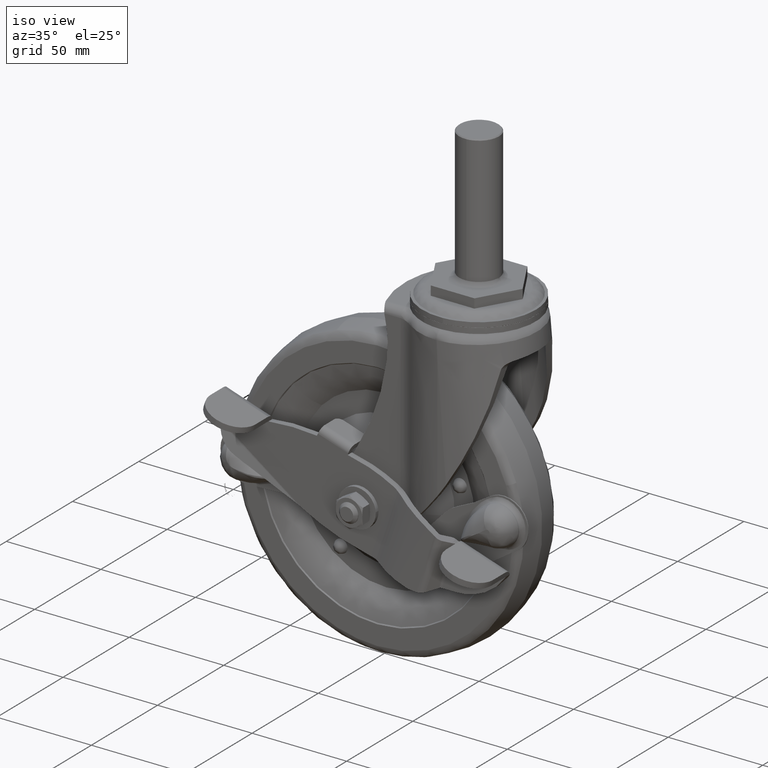
[diagram: clean part render]
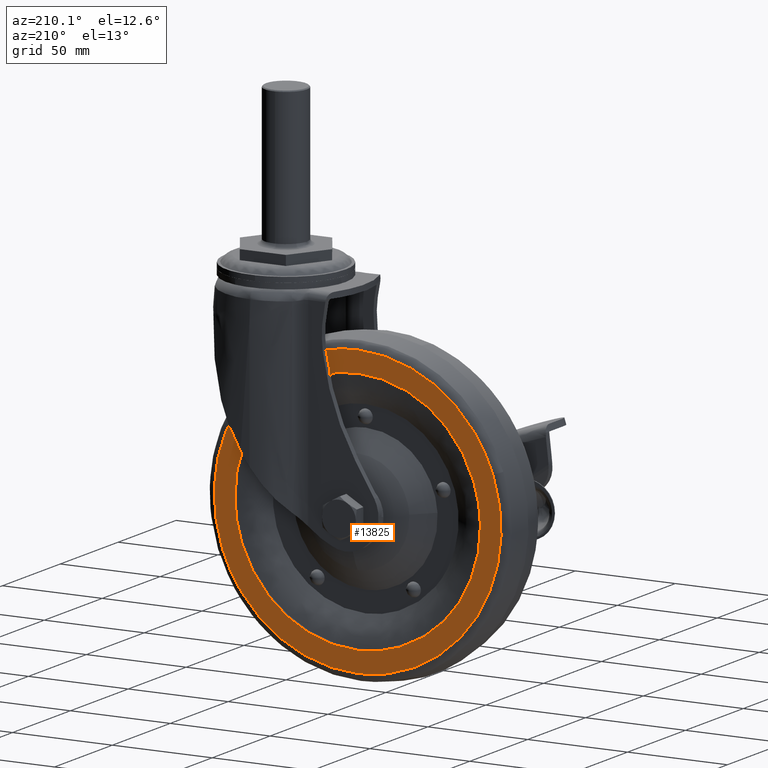
[diagram: tour spotlight — one face highlighted and labeled with its STEP entity id]
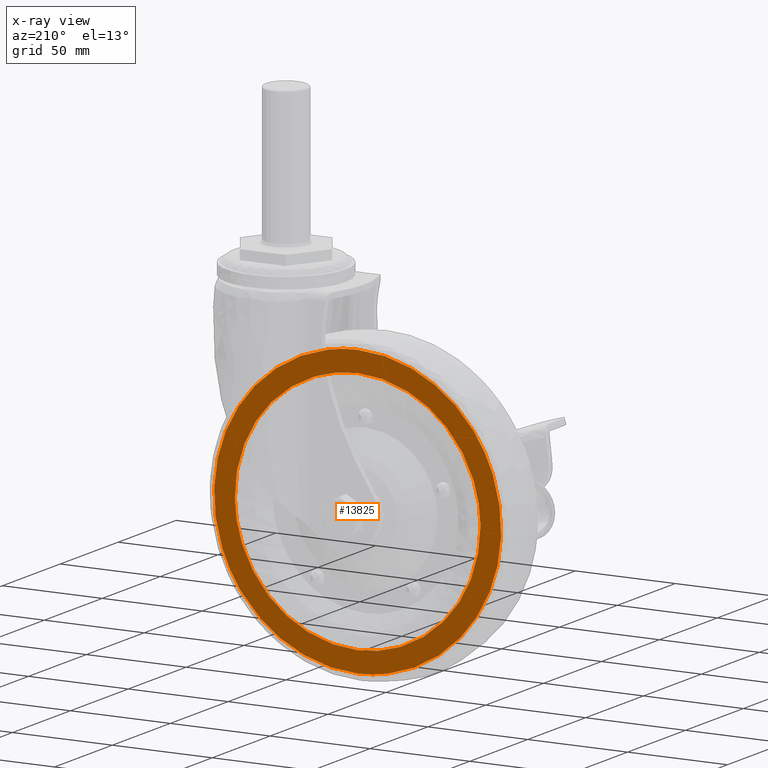
[diagram: x-ray of the same camera — body ghosted, this tour face saturated]
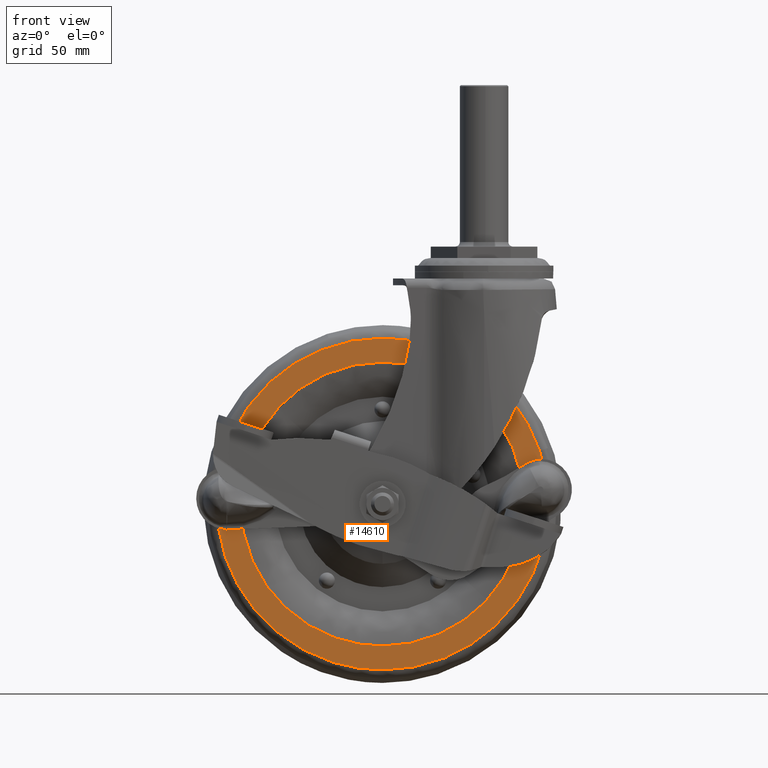
[diagram: tour spotlight — one face highlighted and labeled with its STEP entity id]
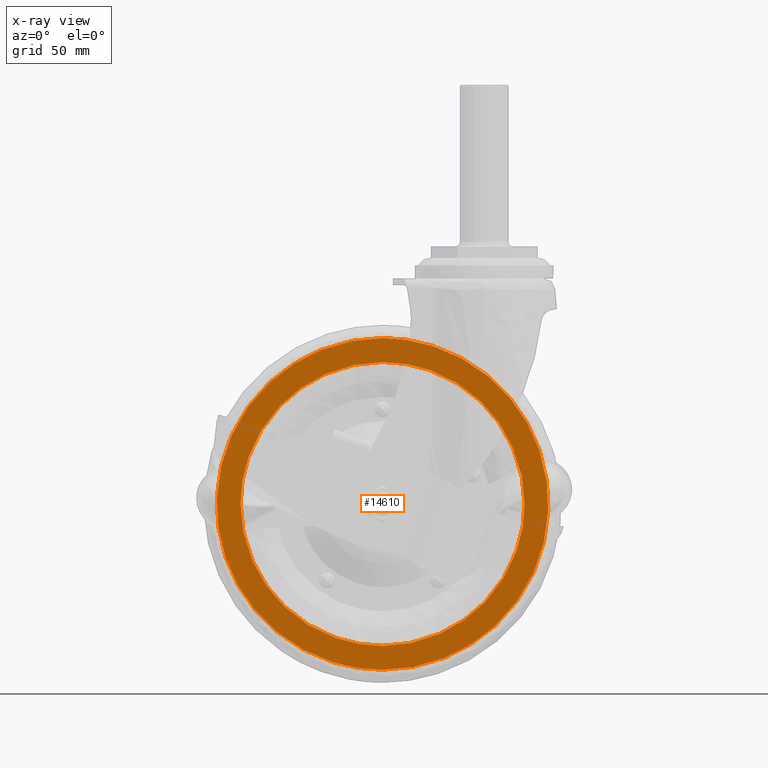
[diagram: x-ray of the same camera — body ghosted, this tour face saturated]
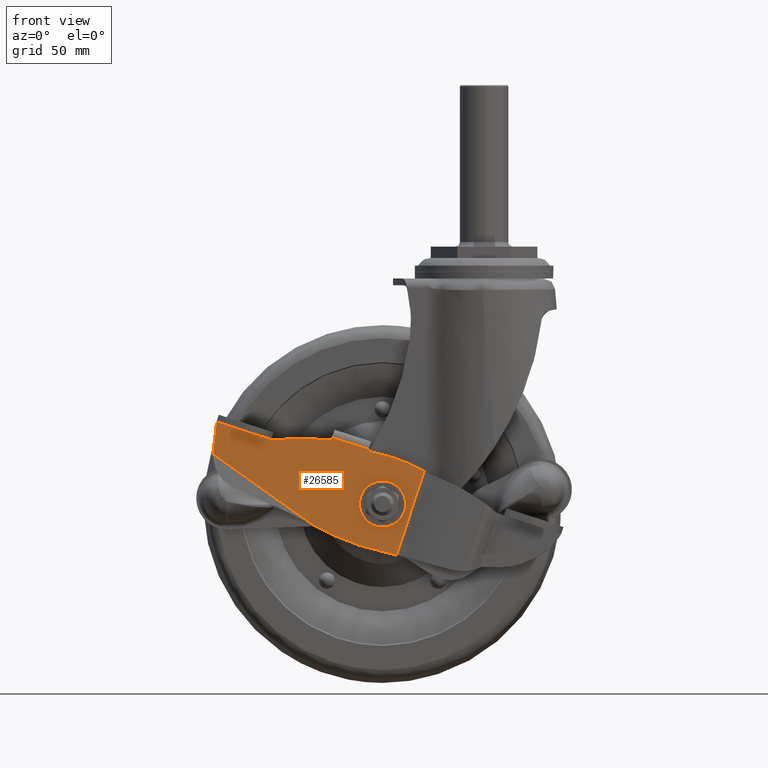
[diagram: tour spotlight — one face highlighted and labeled with its STEP entity id]
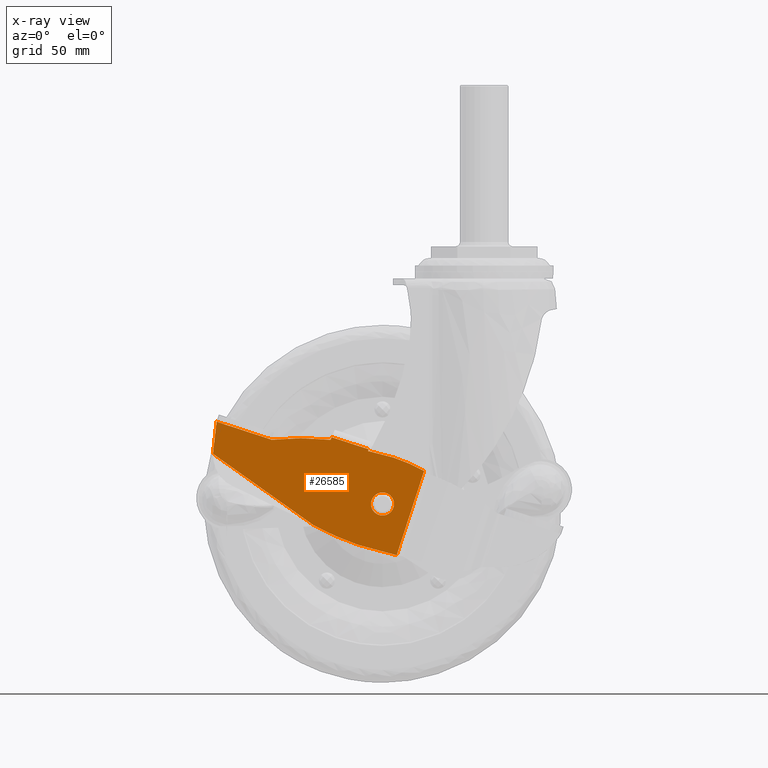
[diagram: x-ray of the same camera — body ghosted, this tour face saturated]
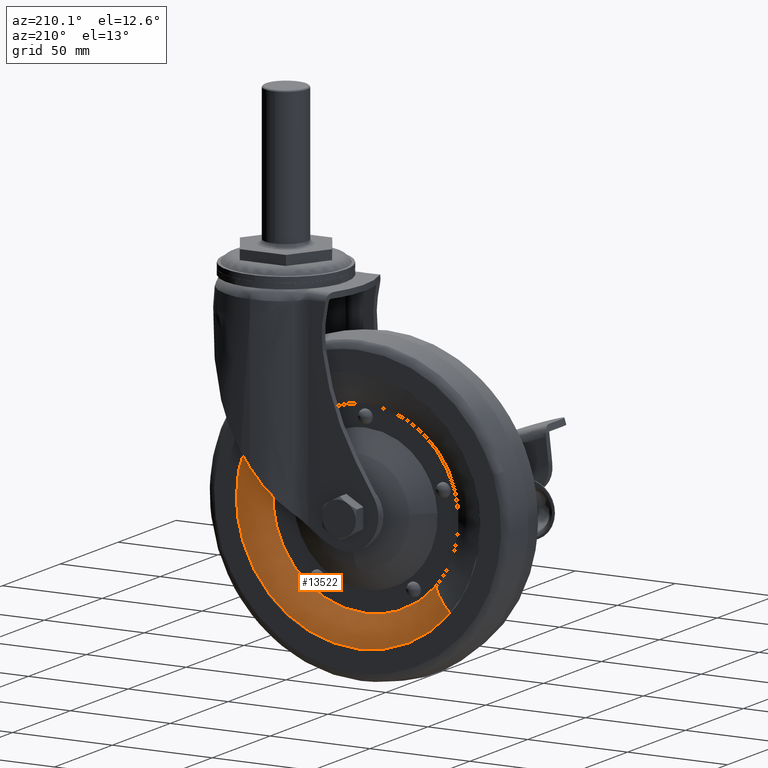
[diagram: tour spotlight — one face highlighted and labeled with its STEP entity id]
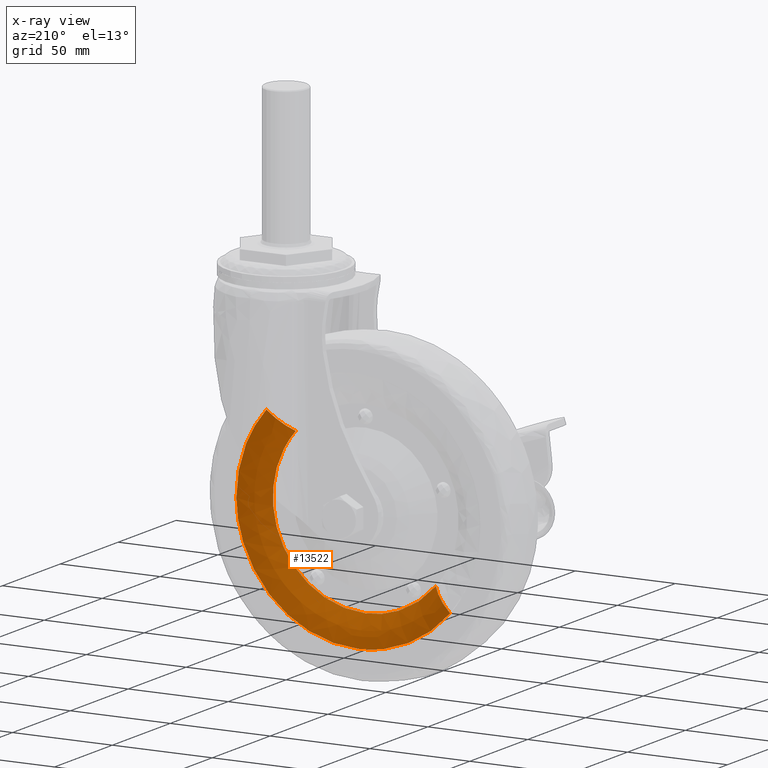
[diagram: x-ray of the same camera — body ghosted, this tour face saturated]
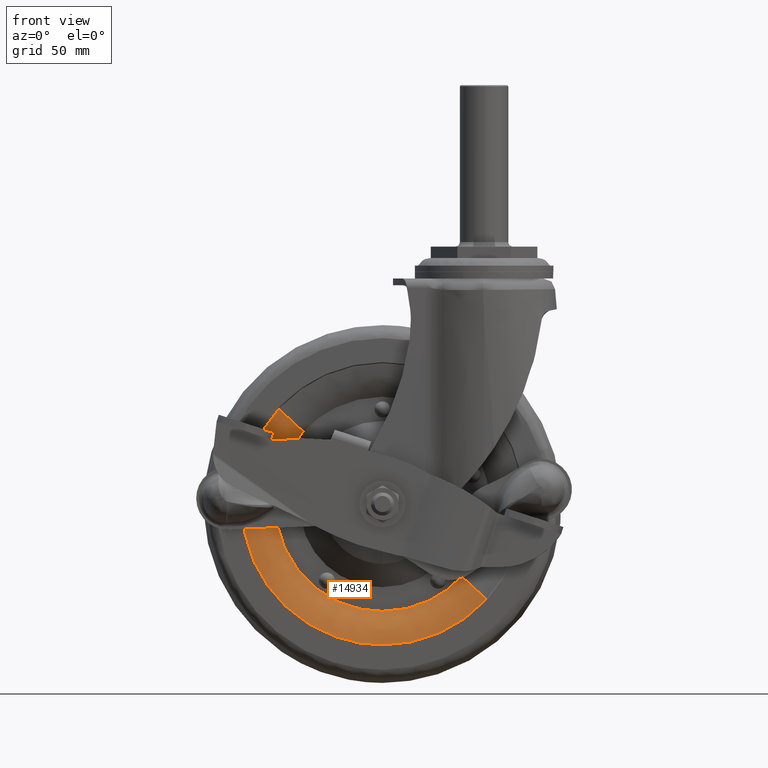
[diagram: tour spotlight — one face highlighted and labeled with its STEP entity id]
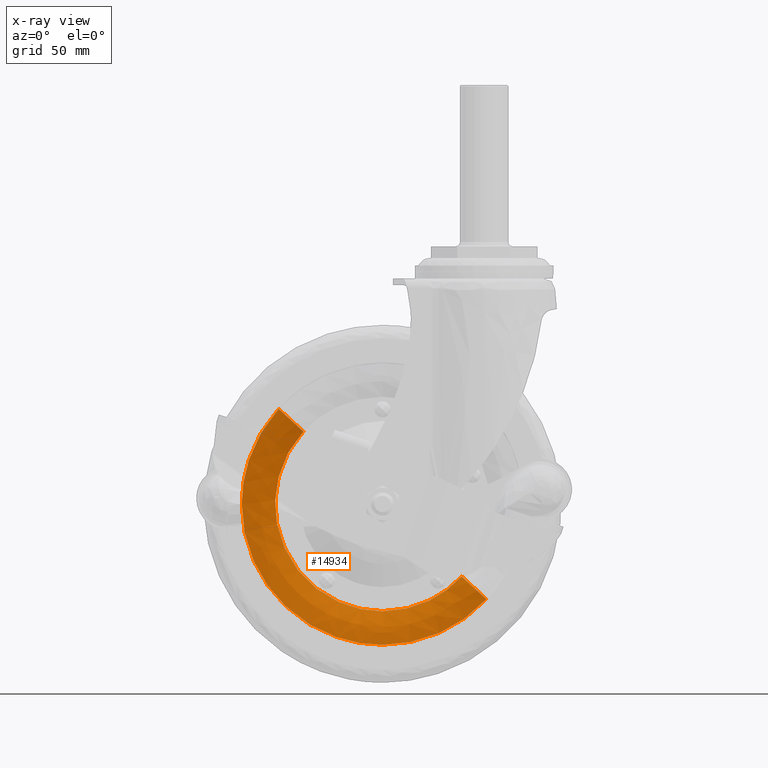
[diagram: x-ray of the same camera — body ghosted, this tour face saturated]
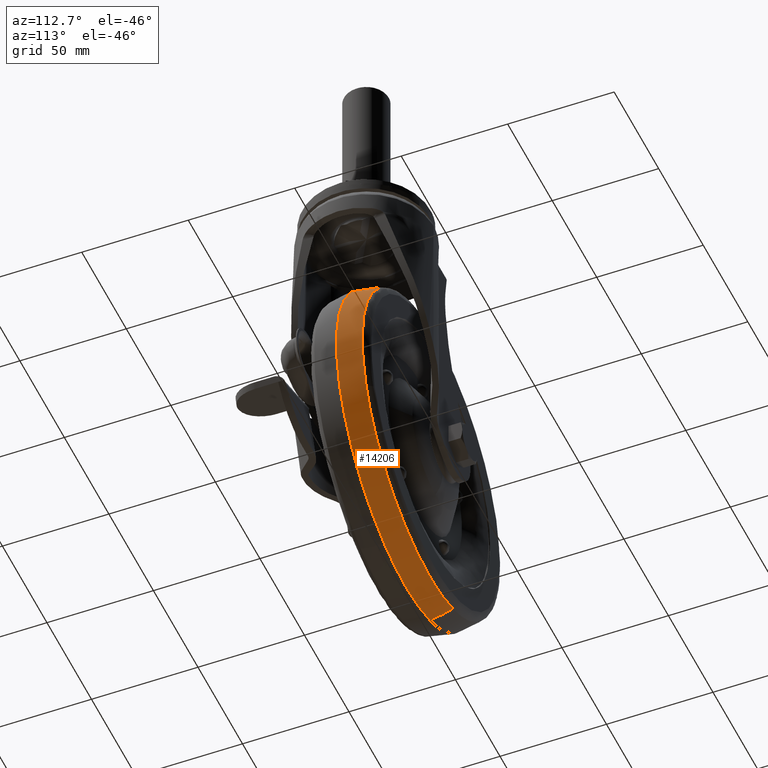
[diagram: tour spotlight — one face highlighted and labeled with its STEP entity id]
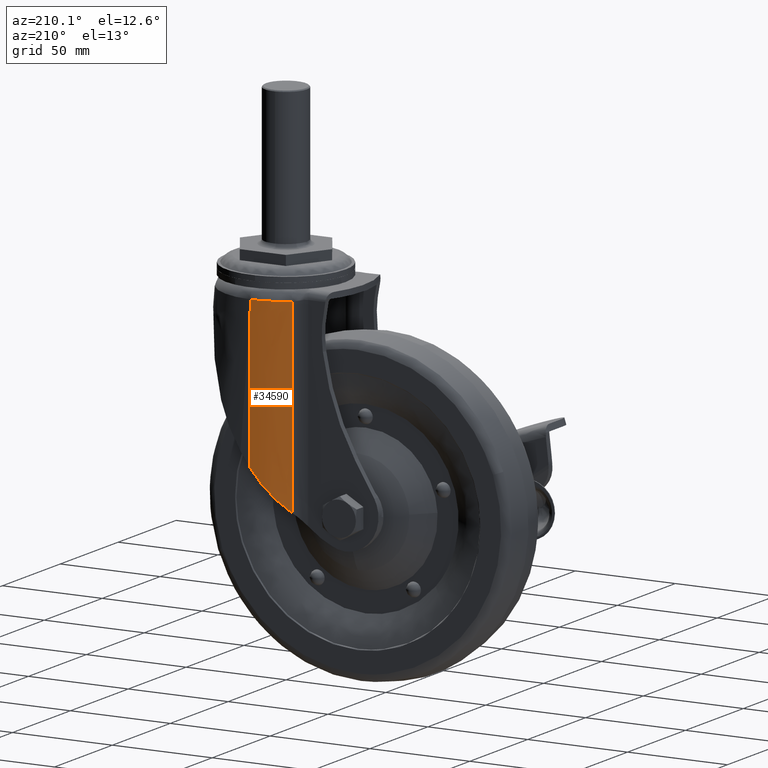
[diagram: tour spotlight — one face highlighted and labeled with its STEP entity id]
A machine part: a face-by-face anatomy tour. The part has 431 B-rep faces; the first image is the clean iso view, then the 7 largest visible faces are spotlighted one at a time (largest first), each with its STEP entity span.

Face 1 — auxiliary view, entity #13825. An x-ray twin of the same camera follows (body ghosted, this face saturated) — the face is partly hidden behind the body. In plain terms, the highlighted face is a freeform B-spline surface patch.
Definition (entity closure, byte-faithful):
#13624=CARTESIAN_POINT('',(17.495144173760039,14.0,-107.372811357408390));
#13625=VERTEX_POINT('',#13624);
#13639=CARTESIAN_POINT('',(-44.0,14.0,-168.099999904632600));
#13640=VERTEX_POINT('',#13639);
#13641=CARTESIAN_POINT('',(-44.0,14.0,-168.099999904632600));
#13642=CARTESIAN_POINT('',(16.731983666409803,13.999999999999991,-168.099999904351250));
#13643=CARTESIAN_POINT('',(17.495144173760039,13.999999999999991,-107.372811357408390));
#13651=(BOUNDED_CURVE()B_SPLINE_CURVE(2,(#13641,#13642,#13643),.UNSPECIFIED.,.F.,.U.)B_SPLINE_CURVE_WITH_KNOTS((3,3),(0.0,0.247784295920263),.UNSPECIFIED.)CURVE()GEOMETRIC_REPRESENTATION_ITEM()RATIONAL_B_SPLINE_CURVE((1.0,0.709702639985956,0.994854295640641))REPRESENTATION_ITEM(''));
#13652=EDGE_CURVE('',#13640,#13625,#13651,.T.);
#13654=CARTESIAN_POINT('',(-105.495144173760000,14.0,-105.827188451856700));
#13655=VERTEX_POINT('',#13654);
#13656=CARTESIAN_POINT('',(-105.495144173760070,13.999999999999991,-105.827188451856770));
#13657=CARTESIAN_POINT('',(-105.499999955370680,13.999999999999993,-106.213578923436120));
#13658=CARTESIAN_POINT('',(-105.499999955511300,14.0,-106.599999905191690));
#13659=CARTESIAN_POINT('',(-105.499999977895460,13.999999999999996,-168.099999904910330));
#13660=CARTESIAN_POINT('',(-44.0,14.0,-168.099999904632600));
#13668=(BOUNDED_CURVE()B_SPLINE_CURVE(2,(#13656,#13657,#13658,#13659,#13660),.UNSPECIFIED.,.F.,.U.)B_SPLINE_CURVE_WITH_KNOTS((3,2,3),(0.747784295920263,0.750000000000000,1.0),.UNSPECIFIED.)CURVE()GEOMETRIC_REPRESENTATION_ITEM()RATIONAL_B_SPLINE_CURVE((0.994854295640641,0.997404141200591,1.0,0.707106781186548,1.0))REPRESENTATION_ITEM(''));
#13669=EDGE_CURVE('',#13655,#13640,#13668,.T.);
#13712=CARTESIAN_POINT('',(-44.0,14.0,-45.099999904632583));
#13713=VERTEX_POINT('',#13712);
#13714=CARTESIAN_POINT('',(-44.0,14.0,-45.099999904632583));
#13715=CARTESIAN_POINT('',(-104.731983666409800,13.999999999999996,-45.099999904913894));
#13716=CARTESIAN_POINT('',(-105.495144173760070,13.999999999999991,-105.827188451856770));
#13724=(BOUNDED_CURVE()B_SPLINE_CURVE(2,(#13714,#13715,#13716),.UNSPECIFIED.,.F.,.U.)B_SPLINE_CURVE_WITH_KNOTS((3,3),(0.500000000000000,0.747784295920263),.UNSPECIFIED.)CURVE()GEOMETRIC_REPRESENTATION_ITEM()RATIONAL_B_SPLINE_CURVE((1.0,0.709702639985956,0.994854295640641))REPRESENTATION_ITEM(''));
#13725=EDGE_CURVE('',#13713,#13655,#13724,.T.);
#13727=CARTESIAN_POINT('',(17.495144173760039,13.999999999999991,-107.372811357408390));
#13728=CARTESIAN_POINT('',(17.499999955370683,13.999999999999993,-106.986420885829130));
#13729=CARTESIAN_POINT('',(17.499999955511321,14.0,-106.599999904073500));
#13730=CARTESIAN_POINT('',(17.499999977895442,13.999999999999996,-45.099999904354782));
#13731=CARTESIAN_POINT('',(-44.0,14.0,-45.099999904632583));
#13739=(BOUNDED_CURVE()B_SPLINE_CURVE(2,(#13727,#13728,#13729,#13730,#13731),.UNSPECIFIED.,.F.,.U.)B_SPLINE_CURVE_WITH_KNOTS((3,2,3),(0.247784295920263,0.250000000000000,0.500000000000000),.UNSPECIFIED.)CURVE()GEOMETRIC_REPRESENTATION_ITEM()RATIONAL_B_SPLINE_CURVE((0.994854295640641,0.997404141200591,1.0,0.707106781186548,1.0))REPRESENTATION_ITEM(''));
#13740=EDGE_CURVE('',#13625,#13713,#13739,.T.);
#13748=CARTESIAN_POINT('',(-123.002568661508800,14.0,-185.619896998458390));
#13749=CARTESIAN_POINT('',(-123.002568661508800,14.0,-27.580098956858539));
#13750=CARTESIAN_POINT('',(35.002571228463069,14.0,-185.619896998458390));
#13751=CARTESIAN_POINT('',(35.002571228463069,14.0,-27.580098956858539));
#13752=B_SPLINE_SURFACE_WITH_KNOTS('',1,1,((#13748,#13750),(#13749,#13751)),.UNSPECIFIED.,.F.,.F.,.U.,(2,2),(2,2),(0.0,158.039798041599910),(0.0,158.005139889971790),.UNSPECIFIED.);
#13753=CARTESIAN_POINT('',(-111.747081916940100,14.0,-82.689311420728544));
#13754=VERTEX_POINT('',#13753);
#13755=CARTESIAN_POINT('',(-44.0,14.0,-178.442801406874990));
#13756=VERTEX_POINT('',#13755);
#13757=CARTESIAN_POINT('',(-111.747081916940000,13.999999999999995,-82.689311420728544));
#13758=CARTESIAN_POINT('',(-115.842801529025760,14.000000000000007,-94.293872802856725));
#13759=CARTESIAN_POINT('',(-115.842801526583900,14.0,-106.599999896041500));
#13760=CARTESIAN_POINT('',(-115.842801512328390,13.999999999999998,-178.442801403315230));
#13761=CARTESIAN_POINT('',(-44.0,14.0,-178.442801406874990));
#13769=(BOUNDED_CURVE()B_SPLINE_CURVE(2,(#13757,#13758,#13759,#13760,#13761),.UNSPECIFIED.,.F.,.U.)B_SPLINE_CURVE_WITH_KNOTS((3,2,3),(0.693451214483278,0.750000000000000,1.0),.UNSPECIFIED.)CURVE()GEOMETRIC_REPRESENTATION_ITEM()RATIONAL_B_SPLINE_CURVE((0.897469272747794,0.933748976760062,1.0,0.707106781186548,1.0))REPRESENTATION_ITEM(''));
#13770=EDGE_CURVE('',#13754,#13756,#13769,.T.);
#13771=ORIENTED_EDGE('',*,*,#13770,.F.);
#13772=CARTESIAN_POINT('',(-44.0,14.0,-34.757198402390173));
#13773=VERTEX_POINT('',#13772);
#13774=CARTESIAN_POINT('',(-44.0,14.0,-34.757198402390173));
#13775=CARTESIAN_POINT('',(-94.829898304983416,13.999999999999998,-34.757198397358842));
#13776=CARTESIAN_POINT('',(-111.747081916940000,13.999999999999995,-82.689311420728544));
#13784=(BOUNDED_CURVE()B_SPLINE_CURVE(2,(#13774,#13775,#13776),.UNSPECIFIED.,.F.,.U.)B_SPLINE_CURVE_WITH_KNOTS((3,3),(0.500000000000000,0.693451214483278),.UNSPECIFIED.)CURVE()GEOMETRIC_REPRESENTATION_ITEM()RATIONAL_B_SPLINE_CURVE((1.0,0.773357804426485,0.897469272747794))REPRESENTATION_ITEM(''));
#13785=EDGE_CURVE('',#13773,#13754,#13784,.T.);
#13786=ORIENTED_EDGE('',*,*,#13785,.F.);
#13787=CARTESIAN_POINT('',(23.747081916940051,14.0,-130.510688388536610));
#13788=VERTEX_POINT('',#13787);
#13789=CARTESIAN_POINT('',(23.747081916940044,14.000000000000005,-130.510688388536610));
#13790=CARTESIAN_POINT('',(27.842801529025717,14.000000000000005,-118.906127006408430));
#13791=CARTESIAN_POINT('',(27.842801526583870,14.0,-106.599999913223700));
#13792=CARTESIAN_POINT('',(27.842801512328382,13.999999999999998,-34.757198405949921));
#13793=CARTESIAN_POINT('',(-44.0,14.0,-34.757198402390173));
#13801=(BOUNDED_CURVE()B_SPLINE_CURVE(2,(#13789,#13790,#13791,#13792,#13793),.UNSPECIFIED.,.F.,.U.)B_SPLINE_CURVE_WITH_KNOTS((3,2,3),(0.193451214483278,0.250000000000000,0.500000000000000),.UNSPECIFIED.)CURVE()GEOMETRIC_REPRESENTATION_ITEM()RATIONAL_B_SPLINE_CURVE((0.897469272747794,0.933748976760063,1.0,0.707106781186548,1.0))REPRESENTATION_ITEM(''));
#13802=EDGE_CURVE('',#13788,#13773,#13801,.T.);
#13803=ORIENTED_EDGE('',*,*,#13802,.F.);
#13804=CARTESIAN_POINT('',(-44.0,14.0,-178.442801406874990));
#13805=CARTESIAN_POINT('',(6.829898304983402,14.0,-178.442801411906400));
#13806=CARTESIAN_POINT('',(23.747081916940044,13.999999999999995,-130.510688388536610));
#13814=(BOUNDED_CURVE()B_SPLINE_CURVE(2,(#13804,#13805,#13806),.UNSPECIFIED.,.F.,.U.)B_SPLINE_CURVE_WITH_KNOTS((3,3),(0.0,0.193451214483278),.UNSPECIFIED.)CURVE()GEOMETRIC_REPRESENTATION_ITEM()RATIONAL_B_SPLINE_CURVE((1.0,0.773357804426485,0.897469272747794))REPRESENTATION_ITEM(''));
#13815=EDGE_CURVE('',#13756,#13788,#13814,.T.);
#13816=ORIENTED_EDGE('',*,*,#13815,.F.);
#13817=EDGE_LOOP('',(#13771,#13786,#13803,#13816));
#13818=FACE_OUTER_BOUND('',#13817,.T.);
#13819=ORIENTED_EDGE('',*,*,#13652,.T.);
#13820=ORIENTED_EDGE('',*,*,#13740,.T.);
#13821=ORIENTED_EDGE('',*,*,#13725,.T.);
#13822=ORIENTED_EDGE('',*,*,#13669,.T.);
#13823=EDGE_LOOP('',(#13819,#13820,#13821,#13822));
#13824=FACE_BOUND('',#13823,.T.);
#13825=ADVANCED_FACE('',(#13818,#13824),#13752,.T.);

Face 2 — front view, entity #14610. An x-ray twin of the same camera follows (body ghosted, this face saturated) — the face is partly hidden behind the body. In plain terms, the highlighted face is a freeform B-spline surface patch.
Definition (entity closure, byte-faithful):
#14413=CARTESIAN_POINT('',(24.042195529246161,-14.0,-83.542511851700667));
#14414=VERTEX_POINT('',#14413);
#14428=CARTESIAN_POINT('',(-44.0,-14.0,-178.442801406874990));
#14429=VERTEX_POINT('',#14428);
#14430=CARTESIAN_POINT('',(-44.0,-14.0,-178.442801406874990));
#14431=CARTESIAN_POINT('',(27.842801502385740,-13.999999999999996,-178.442801406826450));
#14432=CARTESIAN_POINT('',(27.842801502585662,-14.0,-106.599999904516300));
#14433=CARTESIAN_POINT('',(27.842801502618617,-13.999999999999995,-94.758025622236460));
#14434=CARTESIAN_POINT('',(24.042195529246150,-14.000000000000005,-83.542511851700667));
#14442=(BOUNDED_CURVE()B_SPLINE_CURVE(2,(#14430,#14431,#14432,#14433,#14434),.UNSPECIFIED.,.F.,.U.)B_SPLINE_CURVE_WITH_KNOTS((3,2,3),(0.0,0.250000000000000,0.304552238306116),.UNSPECIFIED.)CURVE()GEOMETRIC_REPRESENTATION_ITEM()RATIONAL_B_SPLINE_CURVE((1.0,0.707106781186548,1.0,0.936088077316173,0.900068462127147))REPRESENTATION_ITEM(''));
#14443=EDGE_CURVE('',#14429,#14414,#14442,.T.);
#14445=CARTESIAN_POINT('',(-112.042195529246200,-14.0,-129.657487957564400));
#14446=VERTEX_POINT('',#14445);
#14447=CARTESIAN_POINT('',(-112.042195529246170,-14.000000000000005,-129.657487957564460));
#14448=CARTESIAN_POINT('',(-95.510295385764707,-14.000000000000002,-178.442801406942750));
#14449=CARTESIAN_POINT('',(-44.0,-14.0,-178.442801406874990));
#14457=(BOUNDED_CURVE()B_SPLINE_CURVE(2,(#14447,#14448,#14449),.UNSPECIFIED.,.F.,.U.)B_SPLINE_CURVE_WITH_KNOTS((3,3),(0.804552238306116,1.0),.UNSPECIFIED.)CURVE()GEOMETRIC_REPRESENTATION_ITEM()RATIONAL_B_SPLINE_CURVE((0.900068462127147,0.771018703870375,1.0))REPRESENTATION_ITEM(''));
#14458=EDGE_CURVE('',#14446,#14429,#14457,.T.);
#14502=CARTESIAN_POINT('',(-44.0,-14.0,-34.757198402390173));
#14503=VERTEX_POINT('',#14502);
#14504=CARTESIAN_POINT('',(-44.0,-14.0,-34.757198402390173));
#14505=CARTESIAN_POINT('',(-115.842801502385750,-13.999999999999998,-34.757198402438739));
#14506=CARTESIAN_POINT('',(-115.842801502585700,-14.0,-106.599999904748900));
#14507=CARTESIAN_POINT('',(-115.842801502618630,-13.999999999999995,-118.441974187028650));
#14508=CARTESIAN_POINT('',(-112.042195529246170,-14.000000000000005,-129.657487957564460));
#14516=(BOUNDED_CURVE()B_SPLINE_CURVE(2,(#14504,#14505,#14506,#14507,#14508),.UNSPECIFIED.,.F.,.U.)B_SPLINE_CURVE_WITH_KNOTS((3,2,3),(0.500000000000000,0.750000000000000,0.804552238306116),.UNSPECIFIED.)CURVE()GEOMETRIC_REPRESENTATION_ITEM()RATIONAL_B_SPLINE_CURVE((1.0,0.707106781186548,1.0,0.936088077316173,0.900068462127147))REPRESENTATION_ITEM(''));
#14517=EDGE_CURVE('',#14503,#14446,#14516,.T.);
#14519=CARTESIAN_POINT('',(24.042195529246150,-14.000000000000005,-83.542511851700667));
#14520=CARTESIAN_POINT('',(7.510295385764650,-13.999999999999998,-34.757198402322430));
#14521=CARTESIAN_POINT('',(-44.0,-14.0,-34.757198402390173));
#14529=(BOUNDED_CURVE()B_SPLINE_CURVE(2,(#14519,#14520,#14521),.UNSPECIFIED.,.F.,.U.)B_SPLINE_CURVE_WITH_KNOTS((3,3),(0.304552238306116,0.500000000000000),.UNSPECIFIED.)CURVE()GEOMETRIC_REPRESENTATION_ITEM()RATIONAL_B_SPLINE_CURVE((0.900068462127147,0.771018703870375,1.0))REPRESENTATION_ITEM(''));
#14530=EDGE_CURVE('',#14414,#14503,#14529,.T.);
#14537=CARTESIAN_POINT('',(-123.015564178331000,-14.0,-27.580102810806739));
#14538=CARTESIAN_POINT('',(-123.015564178331000,-14.0,-185.619900852406600));
#14539=CARTESIAN_POINT('',(35.015565461842172,-14.0,-27.580102810806739));
#14540=CARTESIAN_POINT('',(35.015565461842172,-14.0,-185.619900852406600));
#14541=B_SPLINE_SURFACE_WITH_KNOTS('',1,1,((#14537,#14539),(#14538,#14540)),.UNSPECIFIED.,.F.,.F.,.U.,(2,2),(2,2),(0.0,158.039798041599910),(0.0,158.031129640173110),.UNSPECIFIED.);
#14542=ORIENTED_EDGE('',*,*,#14443,.T.);
#14543=ORIENTED_EDGE('',*,*,#14530,.T.);
#14544=ORIENTED_EDGE('',*,*,#14517,.T.);
#14545=ORIENTED_EDGE('',*,*,#14458,.T.);
#14546=EDGE_LOOP('',(#14542,#14543,#14544,#14545));
#14547=FACE_OUTER_BOUND('',#14546,.T.);
#14548=CARTESIAN_POINT('',(-44.0,-14.0,-45.099999904632583));
#14549=VERTEX_POINT('',#14548);
#14550=CARTESIAN_POINT('',(-105.499999987765700,-14.0,-106.599999904632600));
#14551=VERTEX_POINT('',#14550);
#14552=CARTESIAN_POINT('',(-44.0,-14.0,-45.099999904632583));
#14553=CARTESIAN_POINT('',(-105.499999993882880,-13.999999999999998,-45.099999904632554));
#14554=CARTESIAN_POINT('',(-105.499999987765700,-14.0,-106.599999904632600));
#14562=(BOUNDED_CURVE()B_SPLINE_CURVE(2,(#14552,#14553,#14554),.UNSPECIFIED.,.F.,.U.)B_SPLINE_CURVE_WITH_KNOTS((3,3),(0.500000000000000,0.750000000000000),.UNSPECIFIED.)CURVE()GEOMETRIC_REPRESENTATION_ITEM()RATIONAL_B_SPLINE_CURVE((1.0,0.707106781186548,1.0))REPRESENTATION_ITEM(''));
#14563=EDGE_CURVE('',#14549,#14551,#14562,.T.);
#14564=ORIENTED_EDGE('',*,*,#14563,.F.);
#14565=CARTESIAN_POINT('',(17.499999987765740,-14.0,-106.599999904632600));
#14566=VERTEX_POINT('',#14565);
#14567=CARTESIAN_POINT('',(17.499999987765744,-14.000000000000004,-106.599999904632630));
#14568=CARTESIAN_POINT('',(17.499999993882888,-13.999999999999998,-45.099999904632547));
#14569=CARTESIAN_POINT('',(-44.0,-14.0,-45.099999904632583));
#14577=(BOUNDED_CURVE()B_SPLINE_CURVE(2,(#14567,#14568,#14569),.UNSPECIFIED.,.F.,.U.)B_SPLINE_CURVE_WITH_KNOTS((3,3),(0.250000000000000,0.500000000000000),.UNSPECIFIED.)CURVE()GEOMETRIC_REPRESENTATION_ITEM()RATIONAL_B_SPLINE_CURVE((1.000000000000000,0.707106781186547,1.0))REPRESENTATION_ITEM(''));
#14578=EDGE_CURVE('',#14566,#14549,#14577,.T.);
#14579=ORIENTED_EDGE('',*,*,#14578,.F.);
#14580=CARTESIAN_POINT('',(-44.0,-14.0,-168.099999904632600));
#14581=VERTEX_POINT('',#14580);
#14582=CARTESIAN_POINT('',(-44.0,-14.0,-168.099999904632600));
#14583=CARTESIAN_POINT('',(17.499999993882870,-13.999999999999998,-168.099999904632570));
#14584=CARTESIAN_POINT('',(17.499999987765740,-14.0,-106.599999904632600));
#14592=(BOUNDED_CURVE()B_SPLINE_CURVE(2,(#14582,#14583,#14584),.UNSPECIFIED.,.F.,.U.)B_SPLINE_CURVE_WITH_KNOTS((3,3),(0.0,0.250000000000000),.UNSPECIFIED.)CURVE()GEOMETRIC_REPRESENTATION_ITEM()RATIONAL_B_SPLINE_CURVE((1.0,0.707106781186548,1.0))REPRESENTATION_ITEM(''));
#14593=EDGE_CURVE('',#14581,#14566,#14592,.T.);
#14594=ORIENTED_EDGE('',*,*,#14593,.F.);
#14595=CARTESIAN_POINT('',(-105.499999987765700,-14.0,-106.599999904632600));
#14596=CARTESIAN_POINT('',(-105.499999993882880,-13.999999999999998,-168.099999904632570));
#14597=CARTESIAN_POINT('',(-44.0,-14.0,-168.099999904632600));
#14605=(BOUNDED_CURVE()B_SPLINE_CURVE(2,(#14595,#14596,#14597),.UNSPECIFIED.,.F.,.U.)B_SPLINE_CURVE_WITH_KNOTS((3,3),(0.750000000000000,1.0),.UNSPECIFIED.)CURVE()GEOMETRIC_REPRESENTATION_ITEM()RATIONAL_B_SPLINE_CURVE((1.0,0.707106781186548,1.0))REPRESENTATION_ITEM(''));
#14606=EDGE_CURVE('',#14551,#14581,#14605,.T.);
#14607=ORIENTED_EDGE('',*,*,#14606,.F.);
#14608=EDGE_LOOP('',(#14564,#14579,#14594,#14607));
#14609=FACE_BOUND('',#14608,.T.);
#14610=ADVANCED_FACE('',(#14547,#14609),#14541,.T.);

Face 3 — front view, entity #26585. An x-ray twin of the same camera follows (body ghosted, this face saturated) — the face is partly hidden behind the body. In plain terms, the highlighted face is a freeform B-spline surface patch.
Definition (entity closure, byte-faithful):
#25326=CARTESIAN_POINT('',(-44.0,-27.414346000187809,-101.598999904632610));
#25327=VERTEX_POINT('',#25326);
#25328=CARTESIAN_POINT('',(-39.014416499571077,-27.414346000187809,-106.207624879625000));
#25329=VERTEX_POINT('',#25328);
#25330=CARTESIAN_POINT('',(-44.0,-27.414346000187809,-101.598999904632610));
#25331=CARTESIAN_POINT('',(-39.377124162507030,-27.414346000187813,-101.598999904632580));
#25332=CARTESIAN_POINT('',(-39.014416499570956,-27.414346000187809,-106.207624879625000));
#25340=(BOUNDED_CURVE()B_SPLINE_CURVE(2,(#25330,#25331,#25332),.UNSPECIFIED.,.F.,.U.)B_SPLINE_CURVE_WITH_KNOTS((3,3),(0.0,0.236331263247946),.UNSPECIFIED.)CURVE()GEOMETRIC_REPRESENTATION_ITEM()RATIONAL_B_SPLINE_CURVE((1.0,0.723120702404239,0.969723278152560))REPRESENTATION_ITEM(''));
#25341=EDGE_CURVE('',#25327,#25329,#25340,.T.);
#25343=CARTESIAN_POINT('',(-48.985583500428923,-27.414346000187809,-106.992374929640110));
#25344=VERTEX_POINT('',#25343);
#25345=CARTESIAN_POINT('',(-48.985583500429037,-27.414346000187813,-106.992374929640080));
#25346=CARTESIAN_POINT('',(-49.000999999999998,-27.414346000187802,-106.796490275937030));
#25347=CARTESIAN_POINT('',(-49.000999999999998,-27.414346000187809,-106.599999904632600));
#25348=CARTESIAN_POINT('',(-49.000999999999998,-27.414346000187816,-101.598999904632580));
#25349=CARTESIAN_POINT('',(-44.0,-27.414346000187809,-101.598999904632610));
#25357=(BOUNDED_CURVE()B_SPLINE_CURVE(2,(#25345,#25346,#25347,#25348,#25349),.UNSPECIFIED.,.F.,.U.)B_SPLINE_CURVE_WITH_KNOTS((3,2,3),(0.736331263247947,0.750000000000000,1.0),.UNSPECIFIED.)CURVE()GEOMETRIC_REPRESENTATION_ITEM()RATIONAL_B_SPLINE_CURVE((0.969723278152560,0.983986078782309,1.0,0.707106781186547,1.0))REPRESENTATION_ITEM(''));
#25358=EDGE_CURVE('',#25344,#25327,#25357,.T.);
#25425=CARTESIAN_POINT('',(-44.0,-27.414346000187809,-111.600999904632600));
#25426=VERTEX_POINT('',#25425);
#25427=CARTESIAN_POINT('',(-39.014416499570970,-27.414346000187805,-106.207624879624990));
#25428=CARTESIAN_POINT('',(-38.999000000000009,-27.414346000187805,-106.403509533328060));
#25429=CARTESIAN_POINT('',(-38.999000000000002,-27.414346000187809,-106.599999904632600));
#25430=CARTESIAN_POINT('',(-38.999000000000009,-27.414346000187816,-111.600999904632570));
#25431=CARTESIAN_POINT('',(-44.0,-27.414346000187809,-111.600999904632600));
#25439=(BOUNDED_CURVE()B_SPLINE_CURVE(2,(#25427,#25428,#25429,#25430,#25431),.UNSPECIFIED.,.F.,.U.)B_SPLINE_CURVE_WITH_KNOTS((3,2,3),(0.236331263247946,0.250000000000000,0.500000000000000),.UNSPECIFIED.)CURVE()GEOMETRIC_REPRESENTATION_ITEM()RATIONAL_B_SPLINE_CURVE((0.969723278152560,0.983986078782309,1.0,0.707106781186547,1.0))REPRESENTATION_ITEM(''));
#25440=EDGE_CURVE('',#25329,#25426,#25439,.T.);
#25474=CARTESIAN_POINT('',(-44.0,-27.414346000187809,-111.600999904632600));
#25475=CARTESIAN_POINT('',(-48.622875837492984,-27.414346000187798,-111.600999904632540));
#25476=CARTESIAN_POINT('',(-48.985583500429037,-27.414346000187813,-106.992374929640080));
#25484=(BOUNDED_CURVE()B_SPLINE_CURVE(2,(#25474,#25475,#25476),.UNSPECIFIED.,.F.,.U.)B_SPLINE_CURVE_WITH_KNOTS((3,3),(0.500000000000000,0.736331263247947),.UNSPECIFIED.)CURVE()GEOMETRIC_REPRESENTATION_ITEM()RATIONAL_B_SPLINE_CURVE((1.0,0.723120702404238,0.969723278152560))REPRESENTATION_ITEM(''));
#25485=EDGE_CURVE('',#25426,#25344,#25484,.T.);
#25599=CARTESIAN_POINT('',(-92.160438672241199,-27.414346000187809,-78.804490072103576));
#25600=VERTEX_POINT('',#25599);
#25627=CARTESIAN_POINT('',(-92.129474000000002,-27.414346000187809,-78.709404904632464));
#25628=VERTEX_POINT('',#25627);
#25634=CARTESIAN_POINT('',(-92.160438672241199,-27.414346000187809,-78.804490072103576));
#25635=CARTESIAN_POINT('',(-92.129474000000002,-27.414346000187809,-78.709404904632464));
#25636=QUASI_UNIFORM_CURVE('',1,(#25634,#25635),.UNSPECIFIED.,.F.,.U.);
#25637=EDGE_CURVE('',#25600,#25628,#25636,.T.);
#25760=CARTESIAN_POINT('',(-115.906449631990990,-27.414346000187749,-71.018862603326966));
#25761=VERTEX_POINT('',#25760);
#25767=CARTESIAN_POINT('',(-115.898294780100600,-27.414346000187809,-70.969054591772476));
#25768=VERTEX_POINT('',#25767);
#25769=CARTESIAN_POINT('',(-115.898294780100500,-27.414346000187809,-70.969054591772505));
#25770=CARTESIAN_POINT('',(-115.903630744493210,-27.414346000187802,-70.993752542453024));
#25771=CARTESIAN_POINT('',(-115.906449631990800,-27.414346000187809,-71.018862603326980));
#25779=(BOUNDED_CURVE()B_SPLINE_CURVE(2,(#25769,#25770,#25771),.UNSPECIFIED.,.F.,.U.)CURVE()GEOMETRIC_REPRESENTATION_ITEM()QUASI_UNIFORM_CURVE()RATIONAL_B_SPLINE_CURVE((1.0,0.998725518035679,1.0))REPRESENTATION_ITEM(''));
#25780=EDGE_CURVE('',#25768,#25761,#25779,.T.);
#25857=CARTESIAN_POINT('',(-117.410744739423000,-27.414346000187809,-84.886551342433464));
#25858=VERTEX_POINT('',#25857);
#25873=CARTESIAN_POINT('',(-73.988713385616805,-27.414346000187809,-115.727510493194000));
#25874=VERTEX_POINT('',#25873);
#25882=CARTESIAN_POINT('',(-117.410744739423000,-27.414346000187809,-84.886551342433464));
#25883=CARTESIAN_POINT('',(-73.988713385616805,-27.414346000187809,-115.727510493194000));
#25884=QUASI_UNIFORM_CURVE('',1,(#25882,#25883),.UNSPECIFIED.,.F.,.U.);
#25885=EDGE_CURVE('',#25858,#25874,#25884,.T.);
#26009=CARTESIAN_POINT('',(-50.043059546164997,-27.414346000187749,-82.885849411650568));
#26010=VERTEX_POINT('',#26009);
#26031=CARTESIAN_POINT('',(-66.025534170447116,-27.414346000187749,-77.681134159846664));
#26032=VERTEX_POINT('',#26031);
#26046=CARTESIAN_POINT('',(-50.043059546164997,-27.414346000187749,-82.885849411650568));
#26047=CARTESIAN_POINT('',(-66.025534170447116,-27.414346000187749,-77.681134159846664));
#26048=QUASI_UNIFORM_CURVE('',1,(#26046,#26047),.UNSPECIFIED.,.F.,.U.);
#26049=EDGE_CURVE('',#26010,#26032,#26048,.T.);
#26474=CARTESIAN_POINT('',(-92.129474000000002,-27.414346000187809,-78.709404904632464));
#26475=CARTESIAN_POINT('',(-115.898294780100600,-27.414346000187809,-70.969054591772476));
#26476=QUASI_UNIFORM_CURVE('',1,(#26474,#26475),.UNSPECIFIED.,.F.,.U.);
#26477=EDGE_CURVE('',#25628,#25768,#26476,.T.);
#26485=CARTESIAN_POINT('',(-121.977021680062900,-27.414346000187749,-68.081145128560451));
#26486=CARTESIAN_POINT('',(-21.427506030998970,-27.414346000187749,-68.081145128560451));
#26487=CARTESIAN_POINT('',(-121.977021680062900,-27.414346000187749,-131.672973118656810));
#26488=CARTESIAN_POINT('',(-21.427506030998970,-27.414346000187749,-131.672973118656810));
#26489=B_SPLINE_SURFACE_WITH_KNOTS('',1,1,((#26485,#26487),(#26486,#26488)),.UNSPECIFIED.,.F.,.F.,.U.,(2,2),(2,2),(0.0,100.549515649064010),(0.0,63.591827990096313),.UNSPECIFIED.);
#26490=ORIENTED_EDGE('',*,*,#26477,.T.);
#26491=ORIENTED_EDGE('',*,*,#25780,.T.);
#26492=CARTESIAN_POINT('',(-117.323139946828210,-27.414346000187809,-83.638443936443565));
#26493=VERTEX_POINT('',#26492);
#26494=CARTESIAN_POINT('',(-115.906449631990990,-27.414346000187749,-71.018862603326966));
#26495=CARTESIAN_POINT('',(-117.323139946828210,-27.414346000187809,-83.638443936443565));
#26496=QUASI_UNIFORM_CURVE('',1,(#26494,#26495),.UNSPECIFIED.,.F.,.U.);
#26497=EDGE_CURVE('',#25761,#26493,#26496,.T.);
#26498=ORIENTED_EDGE('',*,*,#26497,.T.);
#26499=CARTESIAN_POINT('',(-117.410744739423000,-27.414346000187809,-84.886551342433464));
#26500=CARTESIAN_POINT('',(-117.392991752665920,-27.414346000187805,-84.260669228591013));
#26501=CARTESIAN_POINT('',(-117.323139946828410,-27.414346000187809,-83.638443936443551));
#26509=(BOUNDED_CURVE()B_SPLINE_CURVE(2,(#26499,#26500,#26501),.UNSPECIFIED.,.F.,.U.)CURVE()GEOMETRIC_REPRESENTATION_ITEM()QUASI_UNIFORM_CURVE()RATIONAL_B_SPLINE_CURVE((1.0,0.999129928878915,1.0))REPRESENTATION_ITEM(''));
#26510=EDGE_CURVE('',#25858,#26493,#26509,.T.);
#26511=ORIENTED_EDGE('',*,*,#26510,.F.);
#26512=ORIENTED_EDGE('',*,*,#25885,.T.);
#26513=CARTESIAN_POINT('',(-37.876616883691703,-27.414346000187749,-128.785062104698600));
#26514=VERTEX_POINT('',#26513);
#26515=CARTESIAN_POINT('',(-37.876616883691632,-27.414346000187809,-128.785062104698510));
#26516=CARTESIAN_POINT('',(-56.947536535610602,-27.414346000187809,-125.063024886606940));
#26517=CARTESIAN_POINT('',(-73.988713385616791,-27.414346000187809,-115.727510493194000));
#26525=(BOUNDED_CURVE()B_SPLINE_CURVE(2,(#26515,#26516,#26517),.UNSPECIFIED.,.F.,.U.)CURVE()GEOMETRIC_REPRESENTATION_ITEM()QUASI_UNIFORM_CURVE()RATIONAL_B_SPLINE_CURVE((1.0,0.988132920873693,1.0))REPRESENTATION_ITEM(''));
#26526=EDGE_CURVE('',#26514,#25874,#26525,.T.);
#26527=ORIENTED_EDGE('',*,*,#26526,.F.);
#26528=CARTESIAN_POINT('',(-25.993785423632801,-27.414346000187749,-92.295635015755764));
#26529=VERTEX_POINT('',#26528);
#26530=CARTESIAN_POINT('',(-37.876616883691703,-27.414346000187749,-128.785062104698600));
#26531=CARTESIAN_POINT('',(-25.993785423632801,-27.414346000187749,-92.295635015755764));
#26532=QUASI_UNIFORM_CURVE('',1,(#26530,#26531),.UNSPECIFIED.,.F.,.U.);
#26533=EDGE_CURVE('',#26514,#26529,#26532,.T.);
#26534=ORIENTED_EDGE('',*,*,#26533,.T.);
#26535=CARTESIAN_POINT('',(-50.293989999999987,-27.414346000187809,-83.656398904632468));
#26536=VERTEX_POINT('',#26535);
#26537=CARTESIAN_POINT('',(-50.293989999999987,-27.414346000187809,-83.656398904632468));
#26538=CARTESIAN_POINT('',(-37.438387238296542,-27.414346000187784,-85.991605285392595));
#26539=CARTESIAN_POINT('',(-25.993785423632801,-27.414346000187749,-92.295635015755764));
#26547=(BOUNDED_CURVE()B_SPLINE_CURVE(2,(#26537,#26538,#26539),.UNSPECIFIED.,.F.,.U.)CURVE()GEOMETRIC_REPRESENTATION_ITEM()QUASI_UNIFORM_CURVE()RATIONAL_B_SPLINE_CURVE((1.0,0.986923558764634,1.0))REPRESENTATION_ITEM(''));
#26548=EDGE_CURVE('',#26536,#26529,#26547,.T.);
#26549=ORIENTED_EDGE('',*,*,#26548,.F.);
#26550=CARTESIAN_POINT('',(-50.293989999999987,-27.414346000187809,-83.656398904632468));
#26551=CARTESIAN_POINT('',(-50.043059546164997,-27.414346000187749,-82.885849411650568));
#26552=QUASI_UNIFORM_CURVE('',1,(#26550,#26551),.UNSPECIFIED.,.F.,.U.);
#26553=EDGE_CURVE('',#26536,#26010,#26552,.T.);
#26554=ORIENTED_EDGE('',*,*,#26553,.T.);
#26555=ORIENTED_EDGE('',*,*,#26049,.T.);
#26556=CARTESIAN_POINT('',(-66.502895520877203,-27.414346000187809,-78.824498280768580));
#26557=VERTEX_POINT('',#26556);
#26558=CARTESIAN_POINT('',(-66.025534170447116,-27.414346000187749,-77.681134159846664));
#26559=CARTESIAN_POINT('',(-66.502895520877203,-27.414346000187809,-78.824498280768580));
#26560=QUASI_UNIFORM_CURVE('',1,(#26558,#26559),.UNSPECIFIED.,.F.,.U.);
#26561=EDGE_CURVE('',#26032,#26557,#26560,.T.);
#26562=ORIENTED_EDGE('',*,*,#26561,.T.);
#26563=CARTESIAN_POINT('',(-92.160438672241185,-27.414346000187809,-78.804490072103675));
#26564=CARTESIAN_POINT('',(-79.330536678194875,-27.414346000187805,-77.364901239450845));
#26565=CARTESIAN_POINT('',(-66.502895520877289,-27.414346000187809,-78.824498280768722));
#26573=(BOUNDED_CURVE()B_SPLINE_CURVE(2,(#26563,#26564,#26565),.UNSPECIFIED.,.F.,.U.)CURVE()GEOMETRIC_REPRESENTATION_ITEM()QUASI_UNIFORM_CURVE()RATIONAL_B_SPLINE_CURVE((1.0,0.993676502748711,1.0))REPRESENTATION_ITEM(''));
#26574=EDGE_CURVE('',#25600,#26557,#26573,.T.);
#26575=ORIENTED_EDGE('',*,*,#26574,.F.);
#26576=ORIENTED_EDGE('',*,*,#25637,.T.);
#26577=EDGE_LOOP('',(#26490,#26491,#26498,#26511,#26512,#26527,#26534,#26549,#26554,#26555,#26562,#26575,#26576));
#26578=FACE_OUTER_BOUND('',#26577,.T.);
#26579=ORIENTED_EDGE('',*,*,#25485,.T.);
#26580=ORIENTED_EDGE('',*,*,#25358,.T.);
#26581=ORIENTED_EDGE('',*,*,#25341,.T.);
#26582=ORIENTED_EDGE('',*,*,#25440,.T.);
#26583=EDGE_LOOP('',(#26579,#26580,#26581,#26582));
#26584=FACE_BOUND('',#26583,.T.);
#26585=ADVANCED_FACE('',(#26578,#26584),#26489,.F.);

Face 4 — auxiliary view, entity #13522. An x-ray twin of the same camera follows (body ghosted, this face saturated) — the face is partly hidden behind the body. In plain terms, the highlighted face is a freeform B-spline surface patch.
Definition (entity closure, byte-faithful):
#13327=CARTESIAN_POINT('',(-79.072689204427107,7.000000000272994,-137.131237547342690));
#13328=VERTEX_POINT('',#13327);
#13329=CARTESIAN_POINT('',(-44.0,6.999999999999973,-153.099999904632600));
#13330=VERTEX_POINT('',#13329);
#13331=CARTESIAN_POINT('',(-79.072689204427107,7.000000000272994,-137.131237547342690));
#13332=CARTESIAN_POINT('',(-65.171671362369707,7.000000000136483,-153.099999904724310));
#13333=CARTESIAN_POINT('',(-44.0,6.999999999999973,-153.099999904632600));
#13341=(BOUNDED_CURVE()B_SPLINE_CURVE(2,(#13331,#13332,#13333),.UNSPECIFIED.,.F.,.U.)B_SPLINE_CURVE_WITH_KNOTS((3,3),(0.864567192700934,1.0),.UNSPECIFIED.)CURVE()GEOMETRIC_REPRESENTATION_ITEM()RATIONAL_B_SPLINE_CURVE((0.854573535032640,0.841330596548938,1.0))REPRESENTATION_ITEM(''));
#13342=EDGE_CURVE('',#13328,#13330,#13341,.T.);
#13361=CARTESIAN_POINT('',(-8.927310795572893,7.000000000272997,-76.068762261922501));
#13362=VERTEX_POINT('',#13361);
#13376=CARTESIAN_POINT('',(-44.0,6.999999999999973,-153.099999904632600));
#13377=CARTESIAN_POINT('',(2.500000000047962,7.000000000062127,-153.099999904590900));
#13378=CARTESIAN_POINT('',(2.500000000153285,7.000000000198638,-106.599999904499100));
#13379=CARTESIAN_POINT('',(2.500000000192707,7.000000000249733,-89.195859324726428));
#13380=CARTESIAN_POINT('',(-8.927310795572893,7.000000000272997,-76.068762261922501));
#13388=(BOUNDED_CURVE()B_SPLINE_CURVE(2,(#13376,#13377,#13378,#13379,#13380),.UNSPECIFIED.,.F.,.U.)B_SPLINE_CURVE_WITH_KNOTS((3,2,3),(0.0,0.250000000000000,0.364567192700934),.UNSPECIFIED.)CURVE()GEOMETRIC_REPRESENTATION_ITEM()RATIONAL_B_SPLINE_CURVE((1.0,0.707106781186547,1.0,0.865776184637610,0.854573535032640))REPRESENTATION_ITEM(''));
#13389=EDGE_CURVE('',#13330,#13362,#13388,.T.);
#13420=CARTESIAN_POINT('',(-78.653232446963585,6.437354071786382,-136.766094918296350));
#13421=CARTESIAN_POINT('',(-48.487137433299743,6.437354071786384,-171.419327365260020));
#13422=CARTESIAN_POINT('',(-13.833904986336162,6.437354071786382,-141.253232351596150));
#13423=CARTESIAN_POINT('',(20.819327460627438,6.437354071786384,-111.087137337932350));
#13424=CARTESIAN_POINT('',(-9.346767553036422,6.437354071786382,-76.433904890968719));
#13425=CARTESIAN_POINT('',(-83.537470240641596,13.218242416290680,-141.017888212873400));
#13426=CARTESIAN_POINT('',(-49.119581932400742,13.218242416290673,-180.555358453515080));
#13427=CARTESIAN_POINT('',(-9.582111691759138,13.218242416290680,-146.137470145274140));
#13428=CARTESIAN_POINT('',(29.955358548882437,13.218242416290673,-111.719581837033300));
#13429=CARTESIAN_POINT('',(-4.462529759358404,13.218242416290680,-72.182111596391735));
#13430=CARTESIAN_POINT('',(-90.605329629988560,13.540815331447382,-147.170552851260990));
#13431=CARTESIAN_POINT('',(-50.034776683360157,13.540815331447380,-193.775882481249430));
#13432=CARTESIAN_POINT('',(-3.429447053371618,13.540815331447382,-153.205329534621060));
#13433=CARTESIAN_POINT('',(43.175882576616921,13.540815331447380,-112.634776587992720));
#13434=CARTESIAN_POINT('',(2.605329629988539,13.540815331447382,-66.029446958004186));
#13442=(BOUNDED_SURFACE()B_SPLINE_SURFACE(2,2,((#13420,#13425,#13430),(#13421,#13426,#13431),(#13422,#13427,#13432),(#13423,#13428,#13433),(#13424,#13429,#13434)),.UNSPECIFIED.,.F.,.F.,.U.)B_SPLINE_SURFACE_WITH_KNOTS((3,2,3),(3,3),(0.0,102.377324614347100,204.754649228694290),(0.0,18.032424910334271),.UNSPECIFIED.)GEOMETRIC_REPRESENTATION_ITEM()RATIONAL_B_SPLINE_SURFACE(((0.935062889820579,0.865833357463167,0.934900590951460),(0.661189310228021,0.612236638439721,0.661074547597088),(0.935062889820579,0.865833357463167,0.934900590951460),(0.661189310228021,0.612236638439721,0.661074547597088),(0.935062889820579,0.865833357463167,0.934900590951460)))REPRESENTATION_ITEM('')SURFACE());
#13443=CARTESIAN_POINT('',(-90.009334224351264,13.500000000658900,-146.651731005137290));
#13444=VERTEX_POINT('',#13443);
#13445=CARTESIAN_POINT('',(-44.0,13.499999999999920,-167.599999904632600));
#13446=VERTEX_POINT('',#13445);
#13447=CARTESIAN_POINT('',(-90.009334224351264,13.500000000658902,-146.651731005137290));
#13448=CARTESIAN_POINT('',(-71.773590388935204,13.500000000206642,-167.599999904404480));
#13449=CARTESIAN_POINT('',(-44.0,13.499999999999920,-167.599999904632600));
#13457=(BOUNDED_CURVE()B_SPLINE_CURVE(2,(#13447,#13448,#13449),.UNSPECIFIED.,.F.,.U.)B_SPLINE_CURVE_WITH_KNOTS((3,3),(0.864567192700973,1.0),.UNSPECIFIED.)CURVE()GEOMETRIC_REPRESENTATION_ITEM()RATIONAL_B_SPLINE_CURVE((0.854573535032632,0.841330596548984,1.0))REPRESENTATION_ITEM(''));
#13458=EDGE_CURVE('',#13444,#13446,#13457,.T.);
#13459=ORIENTED_EDGE('',*,*,#13458,.F.);
#13460=CARTESIAN_POINT('',(-79.072689204427107,7.000000000272994,-137.131237547342690));
#13461=CARTESIAN_POINT('',(-83.638940713799371,12.917959626991097,-141.106219595534950));
#13462=CARTESIAN_POINT('',(-90.009334224351264,13.500000000658904,-146.651731005137240));
#13470=(BOUNDED_CURVE()B_SPLINE_CURVE(2,(#13460,#13461,#13462),.UNSPECIFIED.,.F.,.U.)B_SPLINE_CURVE_WITH_KNOTS((3,3),(-1.536376514674447,-0.465006440494983),.UNSPECIFIED.)CURVE()GEOMETRIC_REPRESENTATION_ITEM()RATIONAL_B_SPLINE_CURVE((0.929060239826629,0.871828638978375,0.928912677925460))REPRESENTATION_ITEM(''));
#13471=EDGE_CURVE('',#13328,#13444,#13470,.T.);
#13472=ORIENTED_EDGE('',*,*,#13471,.F.);
#13473=ORIENTED_EDGE('',*,*,#13342,.T.);
#13474=ORIENTED_EDGE('',*,*,#13389,.T.);
#13475=CARTESIAN_POINT('',(2.009334224351250,13.500000000658920,-66.548268804127872));
#13476=VERTEX_POINT('',#13475);
#13477=CARTESIAN_POINT('',(-8.927310795572893,7.000000000272997,-76.068762261922501));
#13478=CARTESIAN_POINT('',(-4.361059286200621,12.917959626991109,-72.093780213730241));
#13479=CARTESIAN_POINT('',(2.009334224351250,13.500000000658915,-66.548268804127872));
#13487=(BOUNDED_CURVE()B_SPLINE_CURVE(2,(#13477,#13478,#13479),.UNSPECIFIED.,.F.,.U.)B_SPLINE_CURVE_WITH_KNOTS((3,3),(-1.536376514674447,-0.465006440494983),.UNSPECIFIED.)CURVE()GEOMETRIC_REPRESENTATION_ITEM()RATIONAL_B_SPLINE_CURVE((0.929060239826629,0.871828638978375,0.928912677925460))REPRESENTATION_ITEM(''));
#13488=EDGE_CURVE('',#13362,#13476,#13487,.T.);
#13489=ORIENTED_EDGE('',*,*,#13488,.T.);
#13490=CARTESIAN_POINT('',(16.995183696431059,13.500000002598190,-107.366528337653190));
#13491=VERTEX_POINT('',#13490);
#13492=CARTESIAN_POINT('',(16.995183696431052,13.500000002598181,-107.366528337653250));
#13493=CARTESIAN_POINT('',(16.999999999995648,13.500000002583905,-106.983279252209640));
#13494=CARTESIAN_POINT('',(16.999999999991321,13.500000002569500,-106.599999904640100));
#13495=CARTESIAN_POINT('',(16.999999999732893,13.500000001711221,-83.768761724984046));
#13496=CARTESIAN_POINT('',(2.009334224351250,13.500000000658915,-66.548268804127886));
#13504=(BOUNDED_CURVE()B_SPLINE_CURVE(2,(#13492,#13493,#13494,#13495,#13496),.UNSPECIFIED.,.F.,.U.)B_SPLINE_CURVE_WITH_KNOTS((3,2,3),(0.247784295921336,0.250000000000000,0.364567192700973),.UNSPECIFIED.)CURVE()GEOMETRIC_REPRESENTATION_ITEM()RATIONAL_B_SPLINE_CURVE((0.994854295643109,0.997404141201848,1.0,0.865776184637563,0.854573535032632))REPRESENTATION_ITEM(''));
#13505=EDGE_CURVE('',#13491,#13476,#13504,.T.);
#13506=ORIENTED_EDGE('',*,*,#13505,.F.);
#13507=CARTESIAN_POINT('',(-44.0,13.499999999999920,-167.599999904632600));
#13508=CARTESIAN_POINT('',(16.238227724211704,13.500000001299050,-167.599999904632600));
#13509=CARTESIAN_POINT('',(16.995183696431052,13.500000002598181,-107.366528337653250));
#13517=(BOUNDED_CURVE()B_SPLINE_CURVE(2,(#13507,#13508,#13509),.UNSPECIFIED.,.F.,.U.)B_SPLINE_CURVE_WITH_KNOTS((3,3),(0.0,0.247784295921336),.UNSPECIFIED.)CURVE()GEOMETRIC_REPRESENTATION_ITEM()RATIONAL_B_SPLINE_CURVE((1.0,0.709702639984700,0.994854295643109))REPRESENTATION_ITEM(''));
#13518=EDGE_CURVE('',#13446,#13491,#13517,.T.);
#13519=ORIENTED_EDGE('',*,*,#13518,.F.);
#13520=EDGE_LOOP('',(#13459,#13472,#13473,#13474,#13489,#13506,#13519));
#13521=FACE_OUTER_BOUND('',#13520,.T.);
#13522=ADVANCED_FACE('',(#13521),#13442,.T.);

Face 5 — front view, entity #14934. An x-ray twin of the same camera follows (body ghosted, this face saturated) — the face is partly hidden behind the body. In plain terms, the highlighted face is a freeform B-spline surface patch.
Definition (entity closure, byte-faithful):
#14666=CARTESIAN_POINT('',(-104.999999999994800,-13.500000484465730,-106.599999904632600));
#14667=VERTEX_POINT('',#14666);
#14681=CARTESIAN_POINT('',(-88.988300158831905,-13.499999999998479,-65.404698609263448));
#14682=VERTEX_POINT('',#14681);
#14683=CARTESIAN_POINT('',(-88.988300158831905,-13.499999999998478,-65.404698609263463));
#14684=CARTESIAN_POINT('',(-104.999999999984620,-13.500000242232018,-82.890652974345983));
#14685=CARTESIAN_POINT('',(-104.999999999994810,-13.500000484465724,-106.599999904632530));
#14693=(BOUNDED_CURVE()B_SPLINE_CURVE(2,(#14683,#14684,#14685),.UNSPECIFIED.,.F.,.U.)B_SPLINE_CURVE_WITH_KNOTS((3,3),(0.631637486163531,0.749999999999970),.UNSPECIFIED.)CURVE()GEOMETRIC_REPRESENTATION_ITEM()RATIONAL_B_SPLINE_CURVE((0.853966311196077,0.861329689342338,0.999999999999929))REPRESENTATION_ITEM(''));
#14694=EDGE_CURVE('',#14682,#14667,#14693,.T.);
#14735=CARTESIAN_POINT('',(0.988300158831890,-13.499999999998479,-147.795301200001690));
#14736=VERTEX_POINT('',#14735);
#14750=CARTESIAN_POINT('',(-44.0,-13.500000000000000,-167.599999904632600));
#14751=VERTEX_POINT('',#14750);
#14752=CARTESIAN_POINT('',(-44.0,-13.500000000000000,-167.599999904632600));
#14753=CARTESIAN_POINT('',(-17.146648868357829,-13.499999999999238,-167.599999904625430));
#14754=CARTESIAN_POINT('',(0.988300158831898,-13.499999999998478,-147.795301200001720));
#14762=(BOUNDED_CURVE()B_SPLINE_CURVE(2,(#14752,#14753,#14754),.UNSPECIFIED.,.F.,.U.)B_SPLINE_CURVE_WITH_KNOTS((3,3),(0.0,0.131637486163531),.UNSPECIFIED.)CURVE()GEOMETRIC_REPRESENTATION_ITEM()RATIONAL_B_SPLINE_CURVE((1.0,0.845777091844208,0.853966311196077))REPRESENTATION_ITEM(''));
#14763=EDGE_CURVE('',#14751,#14736,#14762,.T.);
#14765=CARTESIAN_POINT('',(-104.999999999994740,-13.500000484465721,-106.599999904632530));
#14766=CARTESIAN_POINT('',(-105.000000000009980,-13.500000242233076,-167.599999904635810));
#14767=CARTESIAN_POINT('',(-44.0,-13.500000000000000,-167.599999904632600));
#14775=(BOUNDED_CURVE()B_SPLINE_CURVE(2,(#14765,#14766,#14767),.UNSPECIFIED.,.F.,.U.)B_SPLINE_CURVE_WITH_KNOTS((3,3),(0.749999999999970,1.0),.UNSPECIFIED.)CURVE()GEOMETRIC_REPRESENTATION_ITEM()RATIONAL_B_SPLINE_CURVE((1.000000000000071,0.707106781186512,1.0))REPRESENTATION_ITEM(''));
#14776=EDGE_CURVE('',#14667,#14751,#14775,.T.);
#14811=CARTESIAN_POINT('',(-78.294359957301438,-7.000000000197606,-75.197024326865375));
#14812=VERTEX_POINT('',#14811);
#14813=CARTESIAN_POINT('',(-88.988300158831905,-13.499999999998479,-65.404698609263448));
#14814=CARTESIAN_POINT('',(-82.759277717480941,-12.917959626883855,-71.108547284163848));
#14815=CARTESIAN_POINT('',(-78.294359957301438,-7.000000000197606,-75.197024326865375));
#14823=(BOUNDED_CURVE()B_SPLINE_CURVE(2,(#14813,#14814,#14815),.UNSPECIFIED.,.F.,.U.)B_SPLINE_CURVE_WITH_KNOTS((3,3),(-1.534993559547272,-0.463623485318282),.UNSPECIFIED.)CURVE()GEOMETRIC_REPRESENTATION_ITEM()RATIONAL_B_SPLINE_CURVE((0.928912677929963,0.871828638975731,0.929060239827406))REPRESENTATION_ITEM(''));
#14824=EDGE_CURVE('',#14682,#14812,#14823,.T.);
#14841=CARTESIAN_POINT('',(-9.705640042698583,-7.000000000197604,-138.002975482399790));
#14842=VERTEX_POINT('',#14841);
#14858=CARTESIAN_POINT('',(0.988300158831890,-13.499999999998481,-147.795301200001770));
#14859=CARTESIAN_POINT('',(-5.240722282519067,-12.917959626883855,-142.091452525101370));
#14860=CARTESIAN_POINT('',(-9.705640042698583,-7.000000000197604,-138.002975482399790));
#14868=(BOUNDED_CURVE()B_SPLINE_CURVE(2,(#14858,#14859,#14860),.UNSPECIFIED.,.F.,.U.)B_SPLINE_CURVE_WITH_KNOTS((3,3),(-1.534993559547272,-0.463623485318282),.UNSPECIFIED.)CURVE()GEOMETRIC_REPRESENTATION_ITEM()RATIONAL_B_SPLINE_CURVE((0.928912677929963,0.871828638975731,0.929060239827406))REPRESENTATION_ITEM(''));
#14869=EDGE_CURVE('',#14736,#14842,#14868,.T.);
#14874=CARTESIAN_POINT('',(-89.571068975957218,-13.540815316336671,-64.871063488083593));
#14875=CARTESIAN_POINT('',(-131.300005392506190,-13.540815316336669,-110.442132464040840));
#14876=CARTESIAN_POINT('',(-85.728936416548990,-13.540815316336671,-152.171068880589810));
#14877=CARTESIAN_POINT('',(-40.157867440591779,-13.540815316336669,-193.900005297138760));
#14878=CARTESIAN_POINT('',(1.571068975957204,-13.540815316336671,-148.328936321181490));
#14879=CARTESIAN_POINT('',(-82.660058746517819,-13.218242222277794,-71.199401025887383));
#14880=CARTESIAN_POINT('',(-118.060657625263020,-13.218242222277791,-109.859459772405220));
#14881=CARTESIAN_POINT('',(-79.400598878745200,-13.218242222277794,-145.260058651150390));
#14882=CARTESIAN_POINT('',(-40.740540132227366,-13.218242222277791,-180.660657529895500));
#14883=CARTESIAN_POINT('',(-5.339941253482174,-13.218242222277794,-142.000598783377770));
#14884=CARTESIAN_POINT('',(-77.884211514260244,-6.437353754195869,-75.572592833066011));
#14885=CARTESIAN_POINT('',(-108.911618585826770,-6.437353754195867,-109.456804347326240));
#14886=CARTESIAN_POINT('',(-75.027407071566557,-6.437353754195869,-140.484211418892780));
#14887=CARTESIAN_POINT('',(-41.143195557306321,-6.437353754195867,-171.511618490459230));
#14888=CARTESIAN_POINT('',(-10.115788485739770,-6.437353754195869,-137.627406976199130));
#14896=(BOUNDED_SURFACE()B_SPLINE_SURFACE(2,2,((#14874,#14879,#14884),(#14875,#14880,#14885),(#14876,#14881,#14886),(#14877,#14882,#14887),(#14878,#14883,#14888)),.UNSPECIFIED.,.F.,.F.,.U.)B_SPLINE_SURFACE_WITH_KNOTS((3,2,3),(3,3),(0.0,102.377323887049200,204.754647774098290),(0.0,18.032424910251979),.UNSPECIFIED.)GEOMETRIC_REPRESENTATION_ITEM()RATIONAL_B_SPLINE_SURFACE(((0.934900587457970,0.865833357467271,0.935062893322278),(0.661074545126817,0.612236638442624,0.661189312704096),(0.934900587457970,0.865833357467271,0.935062893322278),(0.661074545126817,0.612236638442624,0.661189312704096),(0.934900587457970,0.865833357467271,0.935062893322278)))REPRESENTATION_ITEM('')SURFACE());
#14897=ORIENTED_EDGE('',*,*,#14763,.T.);
#14898=ORIENTED_EDGE('',*,*,#14869,.T.);
#14899=CARTESIAN_POINT('',(-44.0,-6.999999999999957,-153.099999904632600));
#14900=VERTEX_POINT('',#14899);
#14901=CARTESIAN_POINT('',(-44.0,-6.999999999999957,-153.099999904632600));
#14902=CARTESIAN_POINT('',(-23.529822497931725,-7.000000000098781,-153.099999904700920));
#14903=CARTESIAN_POINT('',(-9.705640042698581,-7.000000000197604,-138.002975482399760));
#14911=(BOUNDED_CURVE()B_SPLINE_CURVE(2,(#14901,#14902,#14903),.UNSPECIFIED.,.F.,.U.)B_SPLINE_CURVE_WITH_KNOTS((3,3),(0.0,0.131637486163522),.UNSPECIFIED.)CURVE()GEOMETRIC_REPRESENTATION_ITEM()RATIONAL_B_SPLINE_CURVE((1.0,0.845777091844219,0.853966311196076))REPRESENTATION_ITEM(''));
#14912=EDGE_CURVE('',#14900,#14842,#14911,.T.);
#14913=ORIENTED_EDGE('',*,*,#14912,.F.);
#14914=CARTESIAN_POINT('',(-78.294359957301438,-7.000000000197606,-75.197024326865375));
#14915=CARTESIAN_POINT('',(-90.500000000136339,-7.000000000180697,-88.526481342887408));
#14916=CARTESIAN_POINT('',(-90.500000000107377,-7.000000000142286,-106.599999904534200));
#14917=CARTESIAN_POINT('',(-90.500000000032827,-7.000000000043460,-153.099999904602500));
#14918=CARTESIAN_POINT('',(-44.0,-6.999999999999957,-153.099999904632600));
#14926=(BOUNDED_CURVE()B_SPLINE_CURVE(2,(#14914,#14915,#14916,#14917,#14918),.UNSPECIFIED.,.F.,.U.)B_SPLINE_CURVE_WITH_KNOTS((3,2,3),(0.631637486163522,0.750000000000000,1.0),.UNSPECIFIED.)CURVE()GEOMETRIC_REPRESENTATION_ITEM()RATIONAL_B_SPLINE_CURVE((0.853966311196076,0.861329689342328,1.0,0.707106781186547,1.0))REPRESENTATION_ITEM(''));
#14927=EDGE_CURVE('',#14812,#14900,#14926,.T.);
#14928=ORIENTED_EDGE('',*,*,#14927,.F.);
#14929=ORIENTED_EDGE('',*,*,#14824,.F.);
#14930=ORIENTED_EDGE('',*,*,#14694,.T.);
#14931=ORIENTED_EDGE('',*,*,#14776,.T.);
#14932=EDGE_LOOP('',(#14897,#14898,#14913,#14928,#14929,#14930,#14931));
#14933=FACE_OUTER_BOUND('',#14932,.T.);
#14934=ADVANCED_FACE('',(#14933),#14896,.T.);

Face 6 — auxiliary view, entity #14206. In plain terms, the highlighted face is a freeform B-spline surface patch.
Definition (entity closure, byte-faithful):
#13849=CARTESIAN_POINT('',(27.317402419371430,11.290322580617250,-131.770799065772910));
#13850=VERTEX_POINT('',#13849);
#13851=CARTESIAN_POINT('',(-17.935010896126741,11.290322580578801,-35.604525673702277));
#13852=VERTEX_POINT('',#13851);
#13853=CARTESIAN_POINT('',(27.317402419371419,11.290322580617257,-131.770799065772910));
#13854=CARTESIAN_POINT('',(31.628969438023542,11.290322580611578,-119.554668852397460));
#13855=CARTESIAN_POINT('',(31.628969438023731,11.290322580605920,-106.599999904621300));
#13856=CARTESIAN_POINT('',(31.628969438024473,11.290322580582856,-53.801243441262663));
#13857=CARTESIAN_POINT('',(-17.935010896126744,11.290322580578799,-35.604525673702284));
#13865=(BOUNDED_CURVE()B_SPLINE_CURVE(2,(#13853,#13854,#13855,#13856,#13857),.UNSPECIFIED.,.F.,.U.)B_SPLINE_CURVE_WITH_KNOTS((3,2,3),(0.193451214484607,0.250000000000000,0.441460350202644),.UNSPECIFIED.)CURVE()GEOMETRIC_REPRESENTATION_ITEM()RATIONAL_B_SPLINE_CURVE((0.897469272749499,0.933748976761620,1.0,0.775690247015987,0.894951884913475))REPRESENTATION_ITEM(''));
#13866=EDGE_CURVE('',#13850,#13852,#13865,.T.);
#13952=CARTESIAN_POINT('',(-44.0,11.290322580645070,-182.228969342648210));
#13953=VERTEX_POINT('',#13952);
#13954=CARTESIAN_POINT('',(-44.0,11.290322580645070,-182.228969342648210));
#13955=CARTESIAN_POINT('',(9.508670931787954,11.290322580640822,-182.228969342647670));
#13956=CARTESIAN_POINT('',(27.317402419371419,11.290322580617257,-131.770799065772910));
#13964=(BOUNDED_CURVE()B_SPLINE_CURVE(2,(#13954,#13955,#13956),.UNSPECIFIED.,.F.,.U.)B_SPLINE_CURVE_WITH_KNOTS((3,3),(0.0,0.193451214484607),.UNSPECIFIED.)CURVE()GEOMETRIC_REPRESENTATION_ITEM()RATIONAL_B_SPLINE_CURVE((1.0,0.773357804424928,0.897469272749499))REPRESENTATION_ITEM(''));
#13965=EDGE_CURVE('',#13953,#13850,#13964,.T.);
#13967=CARTESIAN_POINT('',(-70.064989103873245,11.290322580578801,-177.595474135562910));
#13968=VERTEX_POINT('',#13967);
#13969=CARTESIAN_POINT('',(-70.064989103873245,11.290322580578799,-177.595474135562800));
#13970=CARTESIAN_POINT('',(-57.444335848871901,11.290322580611928,-182.228969342658840));
#13971=CARTESIAN_POINT('',(-44.0,11.290322580645070,-182.228969342648210));
#13979=(BOUNDED_CURVE()B_SPLINE_CURVE(2,(#13969,#13970,#13971),.UNSPECIFIED.,.F.,.U.)B_SPLINE_CURVE_WITH_KNOTS((3,3),(0.941460350202644,1.0),.UNSPECIFIED.)CURVE()GEOMETRIC_REPRESENTATION_ITEM()RATIONAL_B_SPLINE_CURVE((0.894951884913475,0.931416534170560,1.0))REPRESENTATION_ITEM(''));
#13980=EDGE_CURVE('',#13968,#13953,#13979,.T.);
#14030=CARTESIAN_POINT('',(-70.709826546044212,3.580840E-012,-179.351873872800810));
#14031=VERTEX_POINT('',#14030);
#14032=CARTESIAN_POINT('',(-70.064989103873245,11.290322580578794,-177.595474135562850));
#14033=CARTESIAN_POINT('',(-70.709826546070218,5.800194742117254,-179.351873872790630));
#14034=CARTESIAN_POINT('',(-70.709826546044212,3.580840E-012,-179.351873872800780));
#14042=(BOUNDED_CURVE()B_SPLINE_CURVE(2,(#14032,#14033,#14034),.UNSPECIFIED.,.F.,.U.)B_SPLINE_CURVE_WITH_KNOTS((3,3),(-1.330524592515348,-0.646814726663374),.UNSPECIFIED.)CURVE()GEOMETRIC_REPRESENTATION_ITEM()RATIONAL_B_SPLINE_CURVE((0.951202439044976,0.938822565571956,0.952051199977544))REPRESENTATION_ITEM(''));
#14043=EDGE_CURVE('',#13968,#14031,#14042,.T.);
#14089=CARTESIAN_POINT('',(-17.290173453955770,3.580840E-012,-33.848125936464378));
#14090=VERTEX_POINT('',#14089);
#14104=CARTESIAN_POINT('',(-17.935010896126737,11.290322580578795,-35.604525673702298));
#14105=CARTESIAN_POINT('',(-17.290173453929782,5.800194742117252,-33.848125936474560));
#14106=CARTESIAN_POINT('',(-17.290173453955763,3.580840E-012,-33.848125936464378));
#14114=(BOUNDED_CURVE()B_SPLINE_CURVE(2,(#14104,#14105,#14106),.UNSPECIFIED.,.F.,.U.)B_SPLINE_CURVE_WITH_KNOTS((3,3),(-1.330524592515348,-0.646814726663374),.UNSPECIFIED.)CURVE()GEOMETRIC_REPRESENTATION_ITEM()RATIONAL_B_SPLINE_CURVE((0.951202439044976,0.938822565571956,0.952051199977544))REPRESENTATION_ITEM(''));
#14115=EDGE_CURVE('',#13852,#14090,#14114,.T.);
#14120=CARTESIAN_POINT('',(-69.999931715548257,11.829754743249159,-177.418271677805990));
#14121=CARTESIAN_POINT('',(0.818340057625214,11.829754743249165,-203.418203393354300));
#14122=CARTESIAN_POINT('',(26.818271773173464,11.829754743249159,-132.599931620180880));
#14123=CARTESIAN_POINT('',(52.818203488721736,11.829754743249165,-61.781659847007376));
#14124=CARTESIAN_POINT('',(-18.000068284451736,11.829754743249159,-35.781728131459090));
#14125=CARTESIAN_POINT('',(-70.744140106768214,5.816969209511181,-179.445336697895020));
#14126=CARTESIAN_POINT('',(2.101196686494298,5.816969209511181,-206.189476804663340));
#14127=CARTESIAN_POINT('',(28.845336793262515,5.816969209511181,-133.344140011400780));
#14128=CARTESIAN_POINT('',(55.589476900030760,5.816969209511181,-60.498803218138285));
#14129=CARTESIAN_POINT('',(-17.255859893231758,5.816969209511181,-33.754663111370036));
#14130=CARTESIAN_POINT('',(-70.708221442967456,-0.570954303231832,-179.347501914227190));
#14131=CARTESIAN_POINT('',(2.039280566627121,-0.570954303231832,-206.055723357194690));
#14132=CARTESIAN_POINT('',(28.747502009594580,-0.570954303231832,-133.308221347599980));
#14133=CARTESIAN_POINT('',(55.455723452562054,-0.570954303231832,-60.560719338005455));
#14134=CARTESIAN_POINT('',(-17.291778557032526,-0.570954303231832,-33.852497895037985));
#14142=(BOUNDED_SURFACE()B_SPLINE_SURFACE(2,2,((#14120,#14125,#14130),(#14121,#14126,#14131),(#14122,#14127,#14132),(#14123,#14128,#14133),(#14124,#14129,#14134)),.UNSPECIFIED.,.F.,.F.,.U.)B_SPLINE_SURFACE_WITH_KNOTS((3,2,3),(3,3),(0.0,128.398487880038000,256.796975760076010),(0.0,12.672848135602569),.UNSPECIFIED.)GEOMETRIC_REPRESENTATION_ITEM()RATIONAL_B_SPLINE_SURFACE(((0.952503080536363,0.937479527480203,0.953436634797400),(0.673521387348339,0.662898131104812,0.674181509896924),(0.952503080536363,0.937479527480203,0.953436634797400),(0.673521387348339,0.662898131104812,0.674181509896924),(0.952503080536363,0.937479527480203,0.953436634797400)))REPRESENTATION_ITEM('')SURFACE());
#14143=ORIENTED_EDGE('',*,*,#13965,.T.);
#14144=ORIENTED_EDGE('',*,*,#13866,.T.);
#14145=ORIENTED_EDGE('',*,*,#14115,.T.);
#14146=CARTESIAN_POINT('',(-20.051248502283041,0.000005281391752,-180.306901221237410));
#14147=VERTEX_POINT('',#14146);
#14148=CARTESIAN_POINT('',(-20.051248502283041,0.000005281391752,-180.306901221237410));
#14149=CARTESIAN_POINT('',(-16.606172456281740,0.000005238706619,-179.187721277270500));
#14150=CARTESIAN_POINT('',(-10.221739142417951,0.000005141293034,-176.605734183075610));
#14151=CARTESIAN_POINT('',(-2.280609684002769,0.000004973045549,-172.088093108631200));
#14152=CARTESIAN_POINT('',(5.331451276354201,0.000004770484527,-166.612357568545210));
#14153=CARTESIAN_POINT('',(11.794105571009521,0.000004552489377,-160.686795622062790));
#14154=CARTESIAN_POINT('',(18.343774775466279,0.000004269441328,-152.958243585061410));
#14155=CARTESIAN_POINT('',(23.231680458887769,0.000003998432362,-145.532339621286410));
#14156=CARTESIAN_POINT('',(27.128161120157792,0.000003713174131,-137.692456736009800));
#14157=CARTESIAN_POINT('',(29.963599468415872,0.000003441455329,-130.208167854867810));
#14158=CARTESIAN_POINT('',(32.135687822757852,0.000003143492241,-121.983331457055100));
#14159=CARTESIAN_POINT('',(33.465214288256632,0.000002807689847,-112.692911937214800));
#14160=CARTESIAN_POINT('',(33.648710759013667,0.000002406031367,-101.553975657850800));
#14161=CARTESIAN_POINT('',(32.179202089144880,0.000002026447519,-90.996248361608551));
#14162=CARTESIAN_POINT('',(29.153136365630601,0.000001647049505,-80.414331907321269));
#14163=CARTESIAN_POINT('',(25.039357685051979,0.000001300825223,-70.732181186870221));
#14164=CARTESIAN_POINT('',(19.302922660528029,0.000000970551488,-61.461923591622622));
#14165=CARTESIAN_POINT('',(13.555295360588060,0.000000724406194,-54.525259515710388));
#14166=CARTESIAN_POINT('',(8.071297807621605,0.000000530763689,-49.050043658471921));
#14167=CARTESIAN_POINT('',(2.295427215114302,0.000000361887194,-44.256358496811707));
#14168=CARTESIAN_POINT('',(-6.261787441602372,0.000000163855980,-38.601458917539013));
#14169=CARTESIAN_POINT('',(-12.951567975540209,0.000000054456494,-35.440494497922607));
#14170=CARTESIAN_POINT('',(-17.290173453955770,3.580840E-012,-33.848125936464378));
#14171=B_SPLINE_CURVE_WITH_KNOTS('',3,(#14148,#14149,#14150,#14151,#14152,#14153,#14154,#14155,#14156,#14157,#14158,#14159,#14160,#14161,#14162,#14163,#14164,#14165,#14166,#14167,#14168,#14169,#14170),.UNSPECIFIED.,.F.,.U.,(4,1,1,1,1,1,1,1,1,1,1,1,1,1,1,1,1,1,1,1,4),(0.000000206578903,10.866903027737520,20.609669305560178,27.354659620907480,38.971027608235907,46.840187072225262,57.707129108140691,65.576282394654825,73.070710250681316,81.689285392595693,91.057334226056597,101.174607534845710,115.039336872820700,122.908482870165400,134.150214670379310,146.516034106949890,155.509345448152400,161.130180212030610,169.748767642365100,177.992635462642710,191.857319180694300),.UNSPECIFIED.);
#14172=EDGE_CURVE('',#14147,#14090,#14171,.T.);
#14173=ORIENTED_EDGE('',*,*,#14172,.F.);
#14174=CARTESIAN_POINT('',(-44.0,3.704434E-014,-184.099999904632600));
#14175=VERTEX_POINT('',#14174);
#14176=CARTESIAN_POINT('',(-44.0,3.704434E-014,-184.099999904632600));
#14177=CARTESIAN_POINT('',(-31.725241209814438,0.000002640695852,-184.099999904617530));
#14178=CARTESIAN_POINT('',(-20.051248502283038,0.000005281391752,-180.306901221237380));
#14186=(BOUNDED_CURVE()B_SPLINE_CURVE(2,(#14176,#14177,#14178),.UNSPECIFIED.,.F.,.U.)B_SPLINE_CURVE_WITH_KNOTS((3,3),(0.0,0.052549683514041),.UNSPECIFIED.)CURVE()GEOMETRIC_REPRESENTATION_ITEM()RATIONAL_B_SPLINE_CURVE((1.0,0.938434216191777,0.902750532018882))REPRESENTATION_ITEM(''));
#14187=EDGE_CURVE('',#14175,#14147,#14186,.T.);
#14188=ORIENTED_EDGE('',*,*,#14187,.F.);
#14189=CARTESIAN_POINT('',(-70.709826546044212,3.580840E-012,-179.351873872800780));
#14190=CARTESIAN_POINT('',(-57.776943359501615,1.808942E-012,-184.099999904632600));
#14191=CARTESIAN_POINT('',(-44.0,3.704434E-014,-184.099999904632600));
#14199=(BOUNDED_CURVE()B_SPLINE_CURVE(2,(#14189,#14190,#14191),.UNSPECIFIED.,.F.,.U.)B_SPLINE_CURVE_WITH_KNOTS((3,3),(0.941460350202762,1.0),.UNSPECIFIED.)CURVE()GEOMETRIC_REPRESENTATION_ITEM()RATIONAL_B_SPLINE_CURVE((0.894951884913622,0.931416534170698,1.0))REPRESENTATION_ITEM(''));
#14200=EDGE_CURVE('',#14031,#14175,#14199,.T.);
#14201=ORIENTED_EDGE('',*,*,#14200,.F.);
#14202=ORIENTED_EDGE('',*,*,#14043,.F.);
#14203=ORIENTED_EDGE('',*,*,#13980,.T.);
#14204=EDGE_LOOP('',(#14143,#14144,#14145,#14173,#14188,#14201,#14202,#14203));
#14205=FACE_OUTER_BOUND('',#14204,.T.);
#14206=ADVANCED_FACE('',(#14205),#14142,.T.);

Face 7 — auxiliary view, entity #34590. In plain terms, the highlighted face is a freeform B-spline surface patch.
Definition (entity closure, byte-faithful):
#32582=CARTESIAN_POINT('',(-17.988086873891149,25.859047059812749,-13.899999904632571));
#32583=VERTEX_POINT('',#32582);
#32679=CARTESIAN_POINT('',(-0.597051225991669,31.494347337750099,-13.899999904632571));
#32680=VERTEX_POINT('',#32679);
#32694=CARTESIAN_POINT('',(-17.988086873891159,25.859047059812760,-13.899999904632571));
#32695=CARTESIAN_POINT('',(-10.146953599013468,31.313403570596133,-13.899999904632576));
#32696=CARTESIAN_POINT('',(-0.597051225991674,31.494347337750110,-13.899999904632571));
#32704=(BOUNDED_CURVE()B_SPLINE_CURVE(2,(#32694,#32695,#32696),.UNSPECIFIED.,.F.,.U.)CURVE()GEOMETRIC_REPRESENTATION_ITEM()QUASI_UNIFORM_CURVE()RATIONAL_B_SPLINE_CURVE((1.0,0.956972433414193,1.0))REPRESENTATION_ITEM(''));
#32705=EDGE_CURVE('',#32583,#32680,#32704,.T.);
#34046=CARTESIAN_POINT('',(-17.988086873891149,25.859047059812749,-107.739846706140800));
#34047=VERTEX_POINT('',#34046);
#34048=CARTESIAN_POINT('',(-17.988086873891149,25.859047059812749,-107.739846706140800));
#34049=CARTESIAN_POINT('',(-17.988086873891149,25.859047059812749,-13.899999904632571));
#34050=QUASI_UNIFORM_CURVE('',1,(#34048,#34049),.UNSPECIFIED.,.F.,.U.);
#34051=EDGE_CURVE('',#34047,#32583,#34050,.T.);
#34093=CARTESIAN_POINT('',(-0.000322000000102,31.500000000000000,-23.418360256435719));
#34094=VERTEX_POINT('',#34093);
#34095=CARTESIAN_POINT('',(-0.597051225991669,31.494347337750099,-13.899999904632571));
#34096=CARTESIAN_POINT('',(-0.298713386102696,31.500000000000004,-18.658753025737273));
#34097=CARTESIAN_POINT('',(-0.000322000000097,31.500000000000000,-23.418360256435641));
#34105=(BOUNDED_CURVE()B_SPLINE_CURVE(2,(#34095,#34096,#34097),.UNSPECIFIED.,.F.,.U.)CURVE()GEOMETRIC_REPRESENTATION_ITEM()QUASI_UNIFORM_CURVE()RATIONAL_B_SPLINE_CURVE((1.0,0.999955136599070,1.0))REPRESENTATION_ITEM(''));
#34106=EDGE_CURVE('',#32680,#34094,#34105,.T.);
#34537=CARTESIAN_POINT('',(-18.658833854298940,25.379321018951408,-110.085842876178500));
#34538=CARTESIAN_POINT('',(-18.658833854298940,25.379321018951408,-11.495353830343920));
#34539=CARTESIAN_POINT('',(-9.911529365067256,31.810213491749096,-110.085842876178430));
#34540=CARTESIAN_POINT('',(-9.911529365067256,31.810213491749096,-11.495353830343920));
#34541=CARTESIAN_POINT('',(0.940501090043334,31.485946895611075,-110.085842876178480));
#34542=CARTESIAN_POINT('',(0.940501090043334,31.485946895611075,-11.495353830343916));
#34550=(BOUNDED_SURFACE()B_SPLINE_SURFACE(1,2,((#34537,#34539,#34541),(#34538,#34540,#34542)),.UNSPECIFIED.,.F.,.F.,.U.)B_SPLINE_SURFACE_WITH_KNOTS((2,2),(3,3),(0.0,98.590489045834559),(0.0,21.104555932008669),.UNSPECIFIED.)GEOMETRIC_REPRESENTATION_ITEM()RATIONAL_B_SPLINE_SURFACE(((1.0,0.944087478375961,0.997180931066303),(1.0,0.944087478375961,0.997180931066303)))REPRESENTATION_ITEM('')SURFACE());
#34551=ORIENTED_EDGE('',*,*,#34051,.T.);
#34552=ORIENTED_EDGE('',*,*,#32705,.T.);
#34553=ORIENTED_EDGE('',*,*,#34106,.T.);
#34554=CARTESIAN_POINT('',(-0.000322000000108,31.500000000000000,-88.313526294647573));
#34555=VERTEX_POINT('',#34554);
#34556=CARTESIAN_POINT('',(-0.000322000000108,31.500000000000000,-88.313526294647573));
#34557=CARTESIAN_POINT('',(-0.000322000000102,31.500000000000000,-23.418360256435719));
#34558=QUASI_UNIFORM_CURVE('',1,(#34556,#34557),.UNSPECIFIED.,.F.,.U.);
#34559=EDGE_CURVE('',#34555,#34094,#34558,.T.);
#34560=ORIENTED_EDGE('',*,*,#34559,.F.);
#34561=CARTESIAN_POINT('',(-17.988086873891142,25.859047059812781,-107.739846706140800));
#34562=CARTESIAN_POINT('',(-17.227463733148038,26.388142744649151,-107.070611058152590));
#34563=CARTESIAN_POINT('',(-16.456093316327419,26.875003527858478,-106.376100136389100));
#34564=CARTESIAN_POINT('',(-15.286417667746610,27.546094737655970,-105.296069647176790));
#34565=CARTESIAN_POINT('',(-14.896580050192609,27.758668703229940,-104.931671619014100));
#34566=CARTESIAN_POINT('',(-14.118304846783730,28.162470637561700,-104.195047833456900));
#34567=CARTESIAN_POINT('',(-13.729717823728340,28.353783102765082,-103.822684262557900));
#34568=CARTESIAN_POINT('',(-12.566121133895001,28.897819914651329,-102.693568326348100));
#34569=CARTESIAN_POINT('',(-11.793288499601969,29.220701702171340,-101.924797933855400));
#34570=CARTESIAN_POINT('',(-10.255785472450050,29.795115972139719,-100.355691725011500));
#34571=CARTESIAN_POINT('',(-9.491110609839357,30.046629295647499,-99.555353812017231));
#34572=CARTESIAN_POINT('',(-7.971923743538484,30.484890783946280,-97.923388219182769));
#34573=CARTESIAN_POINT('',(-7.217408725550316,30.671626326334430,-97.091759224587037));
#34574=CARTESIAN_POINT('',(-6.094577307475800,30.907220884833791,-95.820938383380550));
#34575=CARTESIAN_POINT('',(-5.721788727222186,30.978326288110399,-95.393434108673574));
#34576=CARTESIAN_POINT('',(-5.164991634058021,31.074292555935621,-94.746334140740402));
#34577=CARTESIAN_POINT('',(-4.979790157083413,31.104498946712539,-94.529660167127389));
#34578=CARTESIAN_POINT('',(-4.610206969412083,31.161417143997749,-94.094363985721600));
#34579=CARTESIAN_POINT('',(-4.425977003019686,31.188103409050939,-93.875918534244562));
#34580=CARTESIAN_POINT('',(-3.509518686861136,31.312665200577040,-92.781944580721827));
#34581=CARTESIAN_POINT('',(-2.789560454193612,31.384266393715631,-91.899060218988964));
#34582=CARTESIAN_POINT('',(-1.375580890814093,31.477939754839380,-90.117867716972327));
#34583=CARTESIAN_POINT('',(-0.681560149801170,31.500000000000000,-89.219559796870968));
#34584=CARTESIAN_POINT('',(-0.000322000000084,31.500000000000000,-88.313526294647588));
#34585=B_SPLINE_CURVE_WITH_KNOTS('',3,(#34561,#34562,#34563,#34564,#34565,#34566,#34567,#34568,#34569,#34570,#34571,#34572,#34573,#34574,#34575,#34576,#34577,#34578,#34579,#34580,#34581,#34582,#34583,#34584),.UNSPECIFIED.,.F.,.U.,(4,2,2,2,2,2,2,2,2,2,2,4),(0.0,0.125000000000002,0.187500000000002,0.250000000000003,0.375000000000004,0.500000000000004,0.625000000000005,0.687500000000005,0.718750000000005,0.750000000000005,0.875000000000002,1.0),.UNSPECIFIED.);
#34586=EDGE_CURVE('',#34047,#34555,#34585,.T.);
#34587=ORIENTED_EDGE('',*,*,#34586,.F.);
#34588=EDGE_LOOP('',(#34551,#34552,#34553,#34560,#34587));
#34589=FACE_OUTER_BOUND('',#34588,.T.);
#34590=ADVANCED_FACE('',(#34589),#34550,.T.);